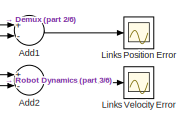
[diagram: root canvas - part 1/6, top center region]
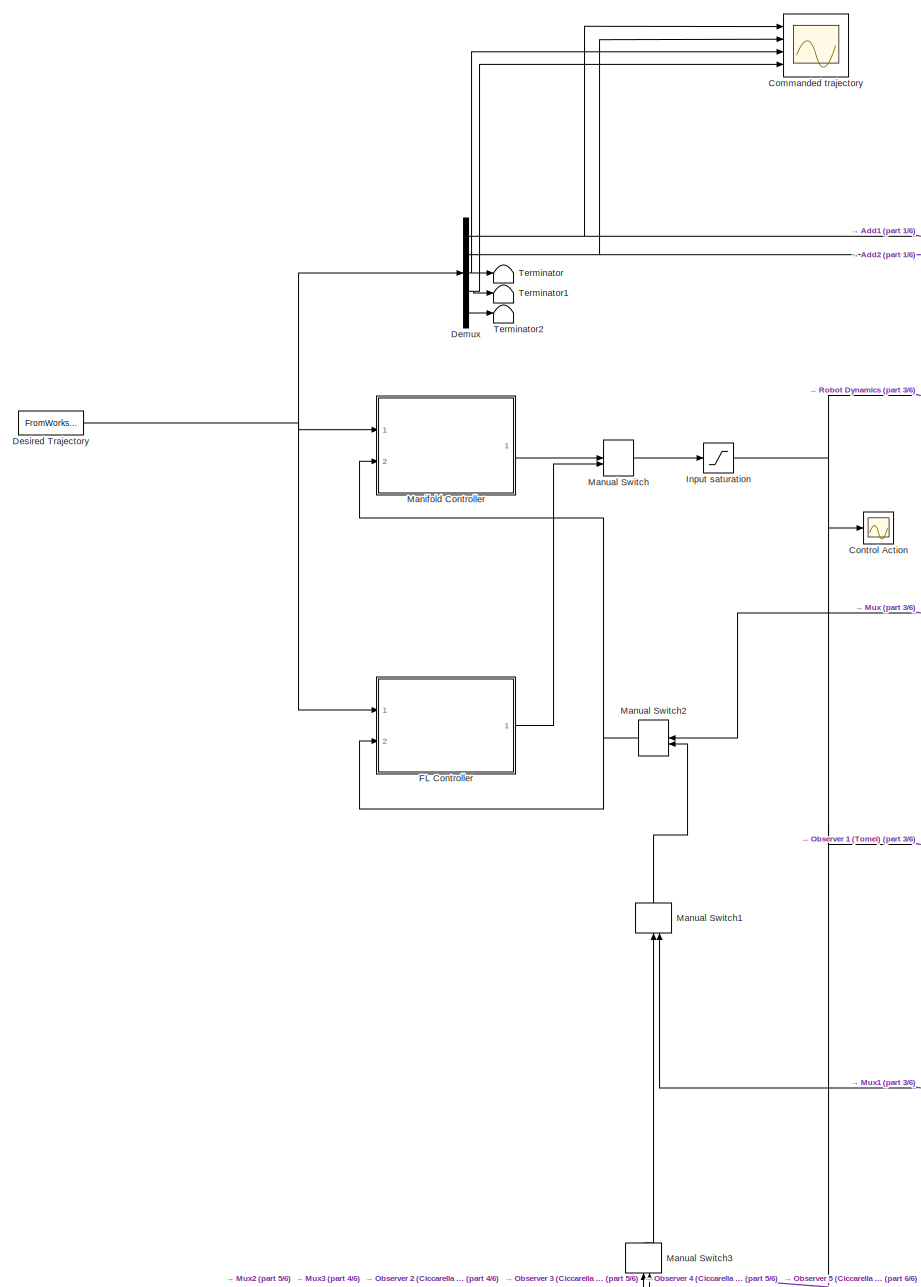
[diagram: root canvas - part 2/6, top left region]
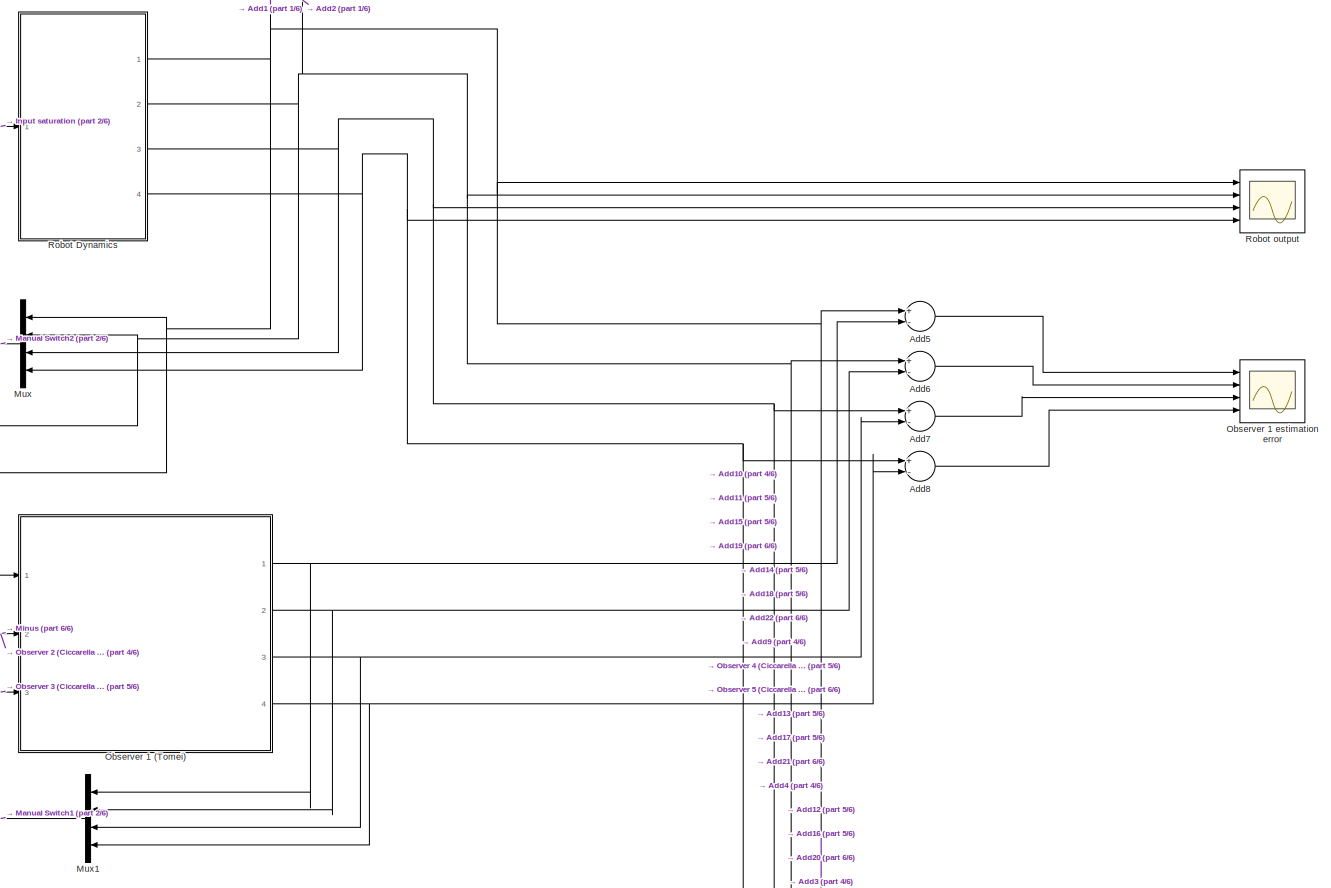
[diagram: root canvas - part 3/6, top right region]
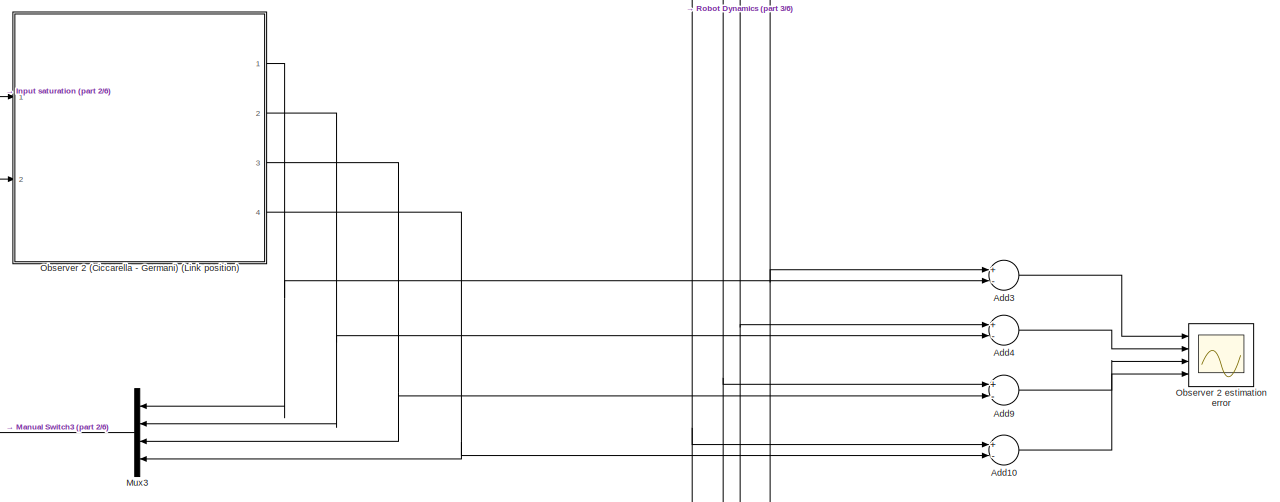
[diagram: root canvas - part 4/6, middle right region]
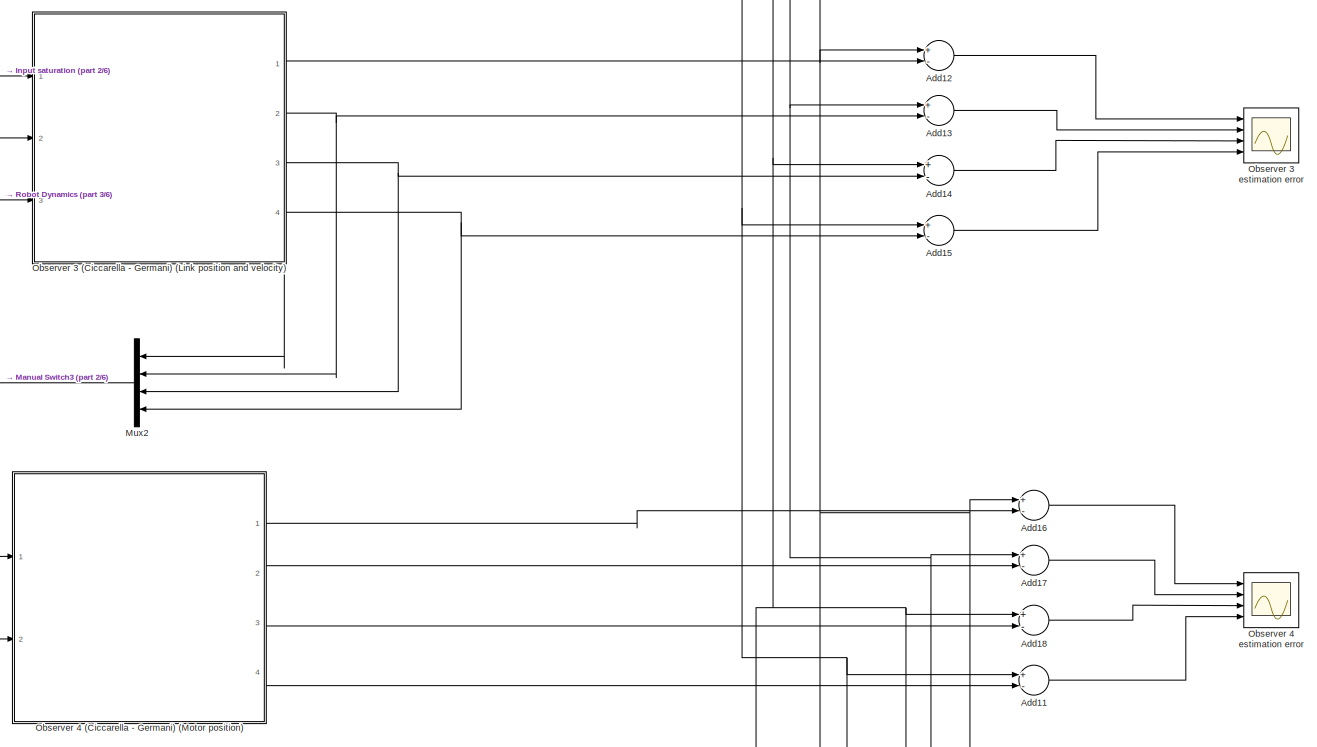
[diagram: root canvas - part 5/6, bottom right region]
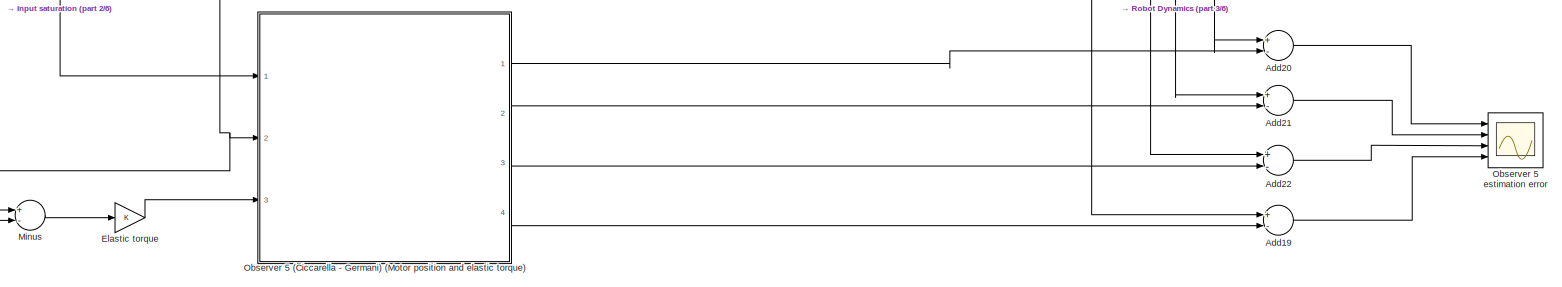
[diagram: root canvas - part 6/6, bottom center region]
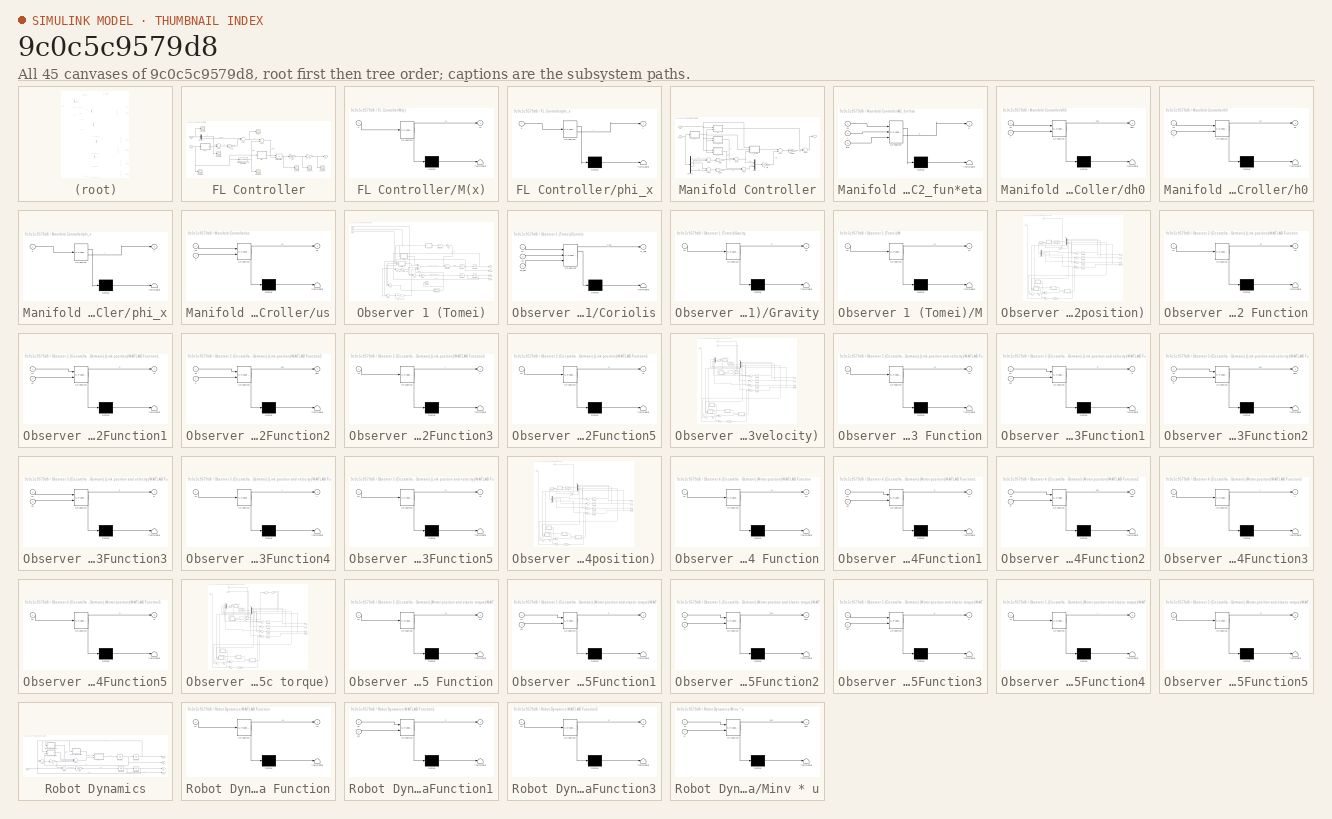
[diagram: thumbnail index - all 45 canvases of the model, root first then tree order]
MODEL slx_9c0c5c9579d8
KIND model
CONFIG AbsTol = auto
CONFIG EnableMultiTasking = off
CONFIG FixedStep = 1e-5
CONFIG MaxStep = auto
CONFIG MinStep = auto
CONFIG RelTol = auto
CONFIG SampleTimeConstraint = Unconstrained
CONFIG Solver = ode15s
CONFIG SolverName = ode15s
CONFIG StartTime = 0.0
CONFIG StopTime = sim_time
BLOCK [Sum] Add1
  InputSameDT = off
  Inputs = +-
  OutDataTypeStr = Inherit: Inherit via internal rule
  Ports = [2, 1]
  SaturateOnIntegerOverflow = off
BLOCK [Sum] Add10
  InputSameDT = off
  Inputs = +-
  OutDataTypeStr = Inherit: Inherit via internal rule
  Ports = [2, 1]
  SaturateOnIntegerOverflow = off
BLOCK [Sum] Add11
  InputSameDT = off
  Inputs = +-
  OutDataTypeStr = Inherit: Inherit via internal rule
  Ports = [2, 1]
  SaturateOnIntegerOverflow = off
BLOCK [Sum] Add12
  InputSameDT = off
  Inputs = +-
  OutDataTypeStr = Inherit: Inherit via internal rule
  Ports = [2, 1]
  SaturateOnIntegerOverflow = off
BLOCK [Sum] Add13
  InputSameDT = off
  Inputs = +-
  OutDataTypeStr = Inherit: Inherit via internal rule
  Ports = [2, 1]
  SaturateOnIntegerOverflow = off
BLOCK [Sum] Add14
  InputSameDT = off
  Inputs = +-
  OutDataTypeStr = Inherit: Inherit via internal rule
  Ports = [2, 1]
  SaturateOnIntegerOverflow = off
BLOCK [Sum] Add15
  InputSameDT = off
  Inputs = +-
  OutDataTypeStr = Inherit: Inherit via internal rule
  Ports = [2, 1]
  SaturateOnIntegerOverflow = off
BLOCK [Sum] Add16
  InputSameDT = off
  Inputs = +-
  OutDataTypeStr = Inherit: Inherit via internal rule
  Ports = [2, 1]
  SaturateOnIntegerOverflow = off
BLOCK [Sum] Add17
  InputSameDT = off
  Inputs = +-
  OutDataTypeStr = Inherit: Inherit via internal rule
  Ports = [2, 1]
  SaturateOnIntegerOverflow = off
BLOCK [Sum] Add18
  InputSameDT = off
  Inputs = +-
  OutDataTypeStr = Inherit: Inherit via internal rule
  Ports = [2, 1]
  SaturateOnIntegerOverflow = off
BLOCK [Sum] Add19
  InputSameDT = off
  Inputs = +-
  OutDataTypeStr = Inherit: Inherit via internal rule
  Ports = [2, 1]
  SaturateOnIntegerOverflow = off
BLOCK [Sum] Add2
  InputSameDT = off
  Inputs = +-
  OutDataTypeStr = Inherit: Inherit via internal rule
  Ports = [2, 1]
  SaturateOnIntegerOverflow = off
BLOCK [Sum] Add20
  InputSameDT = off
  Inputs = +-
  OutDataTypeStr = Inherit: Inherit via internal rule
  Ports = [2, 1]
  SaturateOnIntegerOverflow = off
BLOCK [Sum] Add21
  InputSameDT = off
  Inputs = +-
  OutDataTypeStr = Inherit: Inherit via internal rule
  Ports = [2, 1]
  SaturateOnIntegerOverflow = off
BLOCK [Sum] Add22
  InputSameDT = off
  Inputs = +-
  OutDataTypeStr = Inherit: Inherit via internal rule
  Ports = [2, 1]
  SaturateOnIntegerOverflow = off
BLOCK [Sum] Add3
  InputSameDT = off
  Inputs = +-
  OutDataTypeStr = Inherit: Inherit via internal rule
  Ports = [2, 1]
  SaturateOnIntegerOverflow = off
BLOCK [Sum] Add4
  InputSameDT = off
  Inputs = +-
  OutDataTypeStr = Inherit: Inherit via internal rule
  Ports = [2, 1]
  SaturateOnIntegerOverflow = off
BLOCK [Sum] Add5
  InputSameDT = off
  Inputs = +-
  OutDataTypeStr = Inherit: Inherit via internal rule
  Ports = [2, 1]
  SaturateOnIntegerOverflow = off
BLOCK [Sum] Add6
  InputSameDT = off
  Inputs = +-
  OutDataTypeStr = Inherit: Inherit via internal rule
  Ports = [2, 1]
  SaturateOnIntegerOverflow = off
BLOCK [Sum] Add7
  InputSameDT = off
  Inputs = +-
  OutDataTypeStr = Inherit: Inherit via internal rule
  Ports = [2, 1]
  SaturateOnIntegerOverflow = off
BLOCK [Sum] Add8
  InputSameDT = off
  Inputs = +-
  OutDataTypeStr = Inherit: Inherit via internal rule
  Ports = [2, 1]
  SaturateOnIntegerOverflow = off
BLOCK [Sum] Add9
  InputSameDT = off
  Inputs = +-
  OutDataTypeStr = Inherit: Inherit via internal rule
  Ports = [2, 1]
  SaturateOnIntegerOverflow = off
BLOCK [Scope] Commanded trajectory
  Floating = off
  NumInputPorts = 4
  Ports = [4]
  ScopeSpecificationString = Simulink.scopes.TimeScopeBlockCfg('CurrentConfiguration', extmgr.ConfigurationSet(extmgr.Configuration('Core','General UI',true,'FigureColor',[1 1 1]),extmgr.Configuration('Core','Source UI',true),extmgr.Configuration('Sources','WiredSimulink',true,'DataLoggingVariableName','ScopeData1'),extmgr.Configuration('Visuals','Time Domain',true,'SerializedDisplays',{struct('MinYLimReal','-0.3927','MaxYLim...<+5050ch>
BLOCK [Scope] Control Action
  Floating = off
  NumInputPorts = 1
  Ports = [1]
  ScopeSpecificationString = Simulink.scopes.TimeScopeBlockCfg('CurrentConfiguration', extmgr.ConfigurationSet(extmgr.Configuration('Core','General UI',true),extmgr.Configuration('Core','Source UI',true),extmgr.Configuration('Sources','WiredSimulink',true,'DataLoggingVariableName','ScopeData2'),extmgr.Configuration('Visuals','Time Domain',true,'SerializedDisplays',{struct('MinYLimReal','-0.99838','MaxYLimReal','0.57435','YLab...<+1471ch>
BLOCK [Demux] Demux
  DisplayOption = bar
  Outputs = [n;n;n;n;n]
  Ports = [1, 5]
BLOCK [FromWorkspace] Desired Trajectory
  SampleTime = 0
  VariableName = yd
  ZeroCross = on
BLOCK [Gain] Elastic torque
  Gain = K
  Multiplication = Matrix(K*u) (u vector)
  OutDataTypeStr = Inherit: Inherit via internal rule
  ParamDataTypeStr = Inherit: Inherit via internal rule
  SaturateOnIntegerOverflow = off
BLOCK [SubSystem] FL Controller
  Ports = [2, 1]
  RequestExecContextInheritance = off
BLOCK [Sum] FL Controller/Add
  InputSameDT = off
  Inputs = -+
  OutDataTypeStr = Inherit: Inherit via internal rule
  Ports = [2, 1]
  SaturateOnIntegerOverflow = off
BLOCK [Sum] FL Controller/Add1
  InputSameDT = off
  OutDataTypeStr = Inherit: Inherit via internal rule
  Ports = [2, 1]
  SaturateOnIntegerOverflow = off
BLOCK [Sum] FL Controller/Add2
  InputSameDT = off
  Inputs = +-
  OutDataTypeStr = Inherit: Inherit via internal rule
  Ports = [2, 1]
  SaturateOnIntegerOverflow = off
BLOCK [Demux] FL Controller/Demux
  DisplayOption = bar
  Outputs = [4*n; n]
  Ports = [1, 2]
BLOCK [MATLABFcn] FL Controller/Interpreted MATLAB Function
  MATLABFcn = F_fun(u(:))
  Output1D = off
  Ports = [1, 1]
BLOCK [Gain] FL Controller/J
  Gain = J
  Multiplication = Matrix(K*u) (u vector)
  OutDataTypeStr = Inherit: Inherit via internal rule
  ParamDataTypeStr = Inherit: Inherit via internal rule
  SaturateOnIntegerOverflow = off
BLOCK [Gain] FL Controller/K_ctr
  Gain = K_ctr
  Multiplication = Matrix(K*u) (u vector)
  OutDataTypeStr = Inherit: Inherit via internal rule
  ParamDataTypeStr = Inherit: Inherit via internal rule
  SaturateOnIntegerOverflow = off
BLOCK [Gain] FL Controller/Kinv
  Gain = inv(K)
  Multiplication = Matrix(K*u) (u vector)
  OutDataTypeStr = Inherit: Inherit via internal rule
  ParamDataTypeStr = Inherit: Inherit via internal rule
  SaturateOnIntegerOverflow = off
BLOCK [SubSystem] FL Controller/M(x)
  ErrorFcn = Stateflow.Translate.translate
  PermitHierarchicalResolution = ExplicitOnly
  Ports = [1, 1]
  RequestExecContextInheritance = off
  SFBlockType = MATLAB Function
  TreatAsAtomicUnit = on
BLOCK [Demux] FL Controller/M(x)/ Demux 
  DisplayOption = bar
  Outputs = 1
  Ports = [1, 1]
BLOCK [S-Function] FL Controller/M(x)/ SFunction 
  EnableBusSupport = on
  FunctionName = sf_sfun
  Parameters = J,K,n
  PortCounts = [1 2]
  Ports = [1, 2]
  SFcnIsStateOwnerBlock = off
  SFunctionDeploymentMode = off
  Tag = Stateflow S-Function 14
BLOCK [Terminator] FL Controller/M(x)/ Terminator 
BLOCK [Outport] FL Controller/M(x)/M
  IconDisplay = Port number
BLOCK [Inport] FL Controller/M(x)/x
  IconDisplay = Port number
BLOCK [Product] FL Controller/Matrix Multiply
  InputSameDT = off
  Inputs = **
  Multiplication = Matrix(*)
  OutDataTypeStr = Inherit: Inherit via internal rule
  Ports = [2, 1]
  RndMeth = Floor
  SaturateOnIntegerOverflow = off
BLOCK [Scope] FL Controller/Scope
  Floating = off
  NumInputPorts = 1
  Ports = [1]
  ScopeSpecificationString = Simulink.scopes.TimeScopeBlockCfg('CurrentConfiguration', extmgr.ConfigurationSet(extmgr.Configuration('Core','General UI',true),extmgr.Configuration('Core','Source UI',true),extmgr.Configuration('Sources','WiredSimulink',true,'DataLoggingVariableName','ScopeData1'),extmgr.Configuration('Visuals','Time Domain',true,'SerializedDisplays',{struct('MinYLimReal','-4029283930079.41309','MaxYLimReal','40...<+1521ch>
BLOCK [Scope] FL Controller/Scope1
  Floating = off
  NumInputPorts = 1
  Ports = [1]
  ScopeSpecificationString = Simulink.scopes.TimeScopeBlockCfg('CurrentConfiguration', extmgr.ConfigurationSet(extmgr.Configuration('Core','General UI',true),extmgr.Configuration('Core','Source UI',true),extmgr.Configuration('Sources','WiredSimulink',true,'DataLoggingVariableName','ScopeData2'),extmgr.Configuration('Visuals','Time Domain',true,'SerializedDisplays',{struct('MinYLimReal','-201464196.50397','MaxYLimReal','203834...<+1436ch>
BLOCK [Scope] FL Controller/Scope2
  Floating = off
  NumInputPorts = 1
  Ports = [1]
  ScopeSpecificationString = Simulink.scopes.TimeScopeBlockCfg('CurrentConfiguration', extmgr.ConfigurationSet(extmgr.Configuration('Core','General UI',true),extmgr.Configuration('Core','Source UI',true),extmgr.Configuration('Sources','WiredSimulink',true,'DataLoggingVariableName','ScopeData3'),extmgr.Configuration('Visuals','Time Domain',true,'SerializedDisplays',{struct('MinYLimReal','-20146419650.39706','MaxYLimReal','2038...<+1442ch>
BLOCK [Scope] FL Controller/Scope3
  Floating = off
  NumInputPorts = 1
  Ports = [1]
  ScopeSpecificationString = Simulink.scopes.TimeScopeBlockCfg('CurrentConfiguration', extmgr.ConfigurationSet(extmgr.Configuration('Core','General UI',true),extmgr.Configuration('Core','Source UI',true),extmgr.Configuration('Sources','WiredSimulink',true,'DataLoggingVariableName','ScopeData4'),extmgr.Configuration('Visuals','Time Domain',true,'SerializedDisplays',{struct('MinYLimReal','-7485409477493.48438','MaxYLimReal','54...<+1501ch>
BLOCK [Scope] FL Controller/Scope4
  Floating = off
  NumInputPorts = 1
  Ports = [1]
  ScopeSpecificationString = Simulink.scopes.TimeScopeBlockCfg('CurrentConfiguration', extmgr.ConfigurationSet(extmgr.Configuration('Core','General UI',true),extmgr.Configuration('Core','Source UI',true),extmgr.Configuration('Sources','WiredSimulink',true,'DataLoggingVariableName','ScopeData6'),extmgr.Configuration('Visuals','Time Domain',true,'SerializedDisplays',{struct('MinYLimReal','-1208672398.48295','MaxYLimReal','23333...<+1507ch>
BLOCK [Scope] FL Controller/Scope5
  Floating = off
  NumInputPorts = 1
  Ports = [1]
  ScopeSpecificationString = Simulink.scopes.TimeScopeBlockCfg('CurrentConfiguration', extmgr.ConfigurationSet(extmgr.Configuration('Core','General UI',true),extmgr.Configuration('Core','Source UI',true),extmgr.Configuration('Sources','WiredSimulink',true,'DataLoggingVariableName','ScopeData7'),extmgr.Configuration('Visuals','Time Domain',true,'SerializedDisplays',{struct('MinYLimReal','-1.76715','MaxYLimReal','0.19635','YLab...<+1459ch>
BLOCK [Scope] FL Controller/Scope6
  Floating = off
  NumInputPorts = 1
  Ports = [1]
  ScopeSpecificationString = Simulink.scopes.TimeScopeBlockCfg('CurrentConfiguration', extmgr.ConfigurationSet(extmgr.Configuration('Core','General UI',true),extmgr.Configuration('Core','Source UI',true),extmgr.Configuration('Sources','WiredSimulink',true,'DataLoggingVariableName','ScopeData8'),extmgr.Configuration('Visuals','Time Domain',true,'SerializedDisplays',{struct('MinYLimReal','-43048.91943','MaxYLimReal','49870.5399...<+1467ch>
BLOCK [SubSystem] FL Controller/phi_x
  ErrorFcn = Stateflow.Translate.translate
  PermitHierarchicalResolution = ExplicitOnly
  Ports = [1, 1]
  RequestExecContextInheritance = off
  SFBlockType = MATLAB Function
  TreatAsAtomicUnit = on
BLOCK [Demux] FL Controller/phi_x/ Demux 
  DisplayOption = bar
  Outputs = 1
  Ports = [1, 1]
BLOCK [S-Function] FL Controller/phi_x/ SFunction 
  EnableBusSupport = on
  FunctionName = sf_sfun
  PortCounts = [1 2]
  Ports = [1, 2]
  SFcnIsStateOwnerBlock = off
  SFunctionDeploymentMode = off
  Tag = Stateflow S-Function 13
BLOCK [Terminator] FL Controller/phi_x/ Terminator 
BLOCK [Inport] FL Controller/phi_x/x
  IconDisplay = Port number
BLOCK [Outport] FL Controller/phi_x/y
  IconDisplay = Port number
BLOCK [Outport] FL Controller/u
  IconDisplay = Port number
BLOCK [Scope] FL Controller/v
  Floating = off
  NumInputPorts = 1
  Ports = [1]
  ScopeSpecificationString = Simulink.scopes.TimeScopeBlockCfg('CurrentConfiguration', extmgr.ConfigurationSet(extmgr.Configuration('Core','General UI',true),extmgr.Configuration('Core','Source UI',true),extmgr.Configuration('Sources','WiredSimulink',true,'DataLoggingVariableName','ScopeData5'),extmgr.Configuration('Visuals','Time Domain',true,'SerializedDisplays',{struct('MinYLimReal','-39620048026.37321','MaxYLimReal','1706...<+1477ch>
BLOCK [Inport] FL Controller/x
  IconDisplay = Port number
  Port = 2
BLOCK [Inport] FL Controller/yd
  IconDisplay = Port number
BLOCK [Saturate] Input saturation
  InputPortMap = u0
  LowerLimit = -200
  Ports = [1, 1]
  UpperLimit = 200
BLOCK [Scope] Links Position Error
  Floating = off
  NumInputPorts = 1
  Ports = [1]
  ScopeSpecificationString = Simulink.scopes.TimeScopeBlockCfg('CurrentConfiguration', extmgr.ConfigurationSet(extmgr.Configuration('Core','General UI',true),extmgr.Configuration('Core','Source UI',true),extmgr.Configuration('Sources','WiredSimulink',true,'DataLoggingVariableName','ScopeData1'),extmgr.Configuration('Visuals','Time Domain',true,'SerializedDisplays',{struct('MinYLimReal','-0.00024','MaxYLimReal','0.00061','YLab...<+1456ch>
BLOCK [Scope] Links Velocity Error
  Floating = off
  NumInputPorts = 1
  Ports = [1]
  ScopeSpecificationString = Simulink.scopes.TimeScopeBlockCfg('CurrentConfiguration', extmgr.ConfigurationSet(extmgr.Configuration('Core','General UI',true),extmgr.Configuration('Core','Source UI',true),extmgr.Configuration('Sources','WiredSimulink',true,'DataLoggingVariableName','ScopeData2'),extmgr.Configuration('Visuals','Time Domain',true,'SerializedDisplays',{struct('MinYLimReal','-0.075','MaxYLimReal','0.14074','YLabel...<+1449ch>
BLOCK [SubSystem] Manifold Controller
  Ports = [2, 1]
  RequestExecContextInheritance = off
BLOCK [SubSystem] Manifold Controller/A2_fun*eta
  ErrorFcn = Stateflow.Translate.translate
  PermitHierarchicalResolution = ExplicitOnly
  Ports = [3, 1]
  RequestExecContextInheritance = off
  SFBlockType = MATLAB Function
  TreatAsAtomicUnit = on
BLOCK [Demux] Manifold Controller/A2_fun*eta/ Demux 
  DisplayOption = bar
  Outputs = 1
  Ports = [1, 1]
BLOCK [S-Function] Manifold Controller/A2_fun*eta/ SFunction 
  EnableBusSupport = on
  FunctionName = sf_sfun
  PortCounts = [3 2]
  Ports = [3, 2]
  SFcnIsStateOwnerBlock = off
  SFunctionDeploymentMode = off
  Tag = Stateflow S-Function 20
BLOCK [Terminator] Manifold Controller/A2_fun*eta/ Terminator 
BLOCK [Inport] Manifold Controller/A2_fun*eta/eta
  IconDisplay = Port number
  Port = 3
BLOCK [Outport] Manifold Controller/A2_fun*eta/o
  IconDisplay = Port number
BLOCK [Inport] Manifold Controller/A2_fun*eta/y
  IconDisplay = Port number
  Port = 2
BLOCK [Inport] Manifold Controller/A2_fun*eta/yd
  IconDisplay = Port number
BLOCK [Sum] Manifold Controller/Add
  InputSameDT = off
  Inputs = +-
  OutDataTypeStr = Inherit: Inherit via internal rule
  Ports = [2, 1]
  SaturateOnIntegerOverflow = off
BLOCK [Sum] Manifold Controller/Add1
  InputSameDT = off
  Inputs = +-
  OutDataTypeStr = Inherit: Inherit via internal rule
  Ports = [2, 1]
  SaturateOnIntegerOverflow = off
BLOCK [Sum] Manifold Controller/Add2
  InputSameDT = off
  Inputs = -+
  OutDataTypeStr = Inherit: Inherit via internal rule
  Ports = [2, 1]
  SaturateOnIntegerOverflow = off
BLOCK [Sum] Manifold Controller/Add3
  InputSameDT = off
  Inputs = -+
  OutDataTypeStr = Inherit: Inherit via internal rule
  Ports = [2, 1]
  SaturateOnIntegerOverflow = off
BLOCK [Sum] Manifold Controller/Add4
  InputSameDT = off
  Inputs = -+
  OutDataTypeStr = Inherit: Inherit via internal rule
  Ports = [2, 1]
  SaturateOnIntegerOverflow = off
BLOCK [Sum] Manifold Controller/Add5
  InputSameDT = off
  OutDataTypeStr = Inherit: Inherit via internal rule
  Ports = [2, 1]
  SaturateOnIntegerOverflow = off
BLOCK [Demux] Manifold Controller/Demux1
  DisplayOption = bar
  Outputs = [n;n;n;n]
  Ports = [1, 4]
BLOCK [Gain] Manifold Controller/Gain
  Gain = K
  Multiplication = Matrix(K*u) (u vector)
  OutDataTypeStr = Inherit: Inherit via internal rule
  ParamDataTypeStr = Inherit: Inherit via internal rule
  SaturateOnIntegerOverflow = off
BLOCK [Gain] Manifold Controller/Gain1
  Gain = K
  Multiplication = Matrix(K*u) (u vector)
  OutDataTypeStr = Inherit: Inherit via internal rule
  ParamDataTypeStr = Inherit: Inherit via internal rule
  SaturateOnIntegerOverflow = off
BLOCK [Gain] Manifold Controller/K_ctr2
  Gain = K_ctr2
  Multiplication = Matrix(K*u) (u vector)
  OutDataTypeStr = Inherit: Inherit via internal rule
  ParamDataTypeStr = Inherit: Inherit via internal rule
  SaturateOnIntegerOverflow = off
BLOCK [Mux] Manifold Controller/Mux
  DisplayOption = bar
  Inputs = [n;n]
  Ports = [2, 1]
BLOCK [SubSystem] Manifold Controller/dh0
  ErrorFcn = Stateflow.Translate.translate
  PermitHierarchicalResolution = ExplicitOnly
  Ports = [2, 1]
  RequestExecContextInheritance = off
  SFBlockType = MATLAB Function
  TreatAsAtomicUnit = on
BLOCK [Demux] Manifold Controller/dh0/ Demux 
  DisplayOption = bar
  Outputs = 1
  Ports = [1, 1]
BLOCK [S-Function] Manifold Controller/dh0/ SFunction 
  EnableBusSupport = on
  FunctionName = sf_sfun
  PortCounts = [2 2]
  Ports = [2, 2]
  SFcnIsStateOwnerBlock = off
  SFunctionDeploymentMode = off
  Tag = Stateflow S-Function 19
BLOCK [Terminator] Manifold Controller/dh0/ Terminator 
BLOCK [Outport] Manifold Controller/dh0/dh0
  IconDisplay = Port number
BLOCK [Inport] Manifold Controller/dh0/y
  IconDisplay = Port number
  Port = 2
BLOCK [Inport] Manifold Controller/dh0/yd
  IconDisplay = Port number
BLOCK [SubSystem] Manifold Controller/h0
  ErrorFcn = Stateflow.Translate.translate
  PermitHierarchicalResolution = ExplicitOnly
  Ports = [2, 1]
  RequestExecContextInheritance = off
  SFBlockType = MATLAB Function
  TreatAsAtomicUnit = on
BLOCK [Demux] Manifold Controller/h0/ Demux 
  DisplayOption = bar
  Outputs = 1
  Ports = [1, 1]
BLOCK [S-Function] Manifold Controller/h0/ SFunction 
  EnableBusSupport = on
  FunctionName = sf_sfun
  PortCounts = [2 2]
  Ports = [2, 2]
  SFcnIsStateOwnerBlock = off
  SFunctionDeploymentMode = off
  Tag = Stateflow S-Function 17
BLOCK [Terminator] Manifold Controller/h0/ Terminator 
BLOCK [Outport] Manifold Controller/h0/h0
  IconDisplay = Port number
BLOCK [Inport] Manifold Controller/h0/y
  IconDisplay = Port number
  Port = 2
BLOCK [Inport] Manifold Controller/h0/yd
  IconDisplay = Port number
BLOCK [Gain] Manifold Controller/inv(B2)
  Gain = inv(B2)
  Multiplication = Matrix(K*u) (u vector)
  OutDataTypeStr = Inherit: Inherit via internal rule
  ParamDataTypeStr = Inherit: Inherit via internal rule
  SaturateOnIntegerOverflow = off
BLOCK [SubSystem] Manifold Controller/phi_x
  ErrorFcn = Stateflow.Translate.translate
  PermitHierarchicalResolution = ExplicitOnly
  Ports = [1, 1]
  RequestExecContextInheritance = off
  SFBlockType = MATLAB Function
  TreatAsAtomicUnit = on
BLOCK [Demux] Manifold Controller/phi_x/ Demux 
  DisplayOption = bar
  Outputs = 1
  Ports = [1, 1]
BLOCK [S-Function] Manifold Controller/phi_x/ SFunction 
  EnableBusSupport = on
  FunctionName = sf_sfun
  PortCounts = [1 2]
  Ports = [1, 2]
  SFcnIsStateOwnerBlock = off
  SFunctionDeploymentMode = off
  Tag = Stateflow S-Function 18
BLOCK [Terminator] Manifold Controller/phi_x/ Terminator 
BLOCK [Inport] Manifold Controller/phi_x/x
  IconDisplay = Port number
BLOCK [Outport] Manifold Controller/phi_x/y
  IconDisplay = Port number
BLOCK [Outport] Manifold Controller/u
  IconDisplay = Port number
BLOCK [SubSystem] Manifold Controller/us
  ErrorFcn = Stateflow.Translate.translate
  PermitHierarchicalResolution = ExplicitOnly
  Ports = [2, 1]
  RequestExecContextInheritance = off
  SFBlockType = MATLAB Function
  TreatAsAtomicUnit = on
BLOCK [Demux] Manifold Controller/us/ Demux 
  DisplayOption = bar
  Outputs = 1
  Ports = [1, 1]
BLOCK [S-Function] Manifold Controller/us/ SFunction 
  EnableBusSupport = on
  FunctionName = sf_sfun
  PortCounts = [2 2]
  Ports = [2, 2]
  SFcnIsStateOwnerBlock = off
  SFunctionDeploymentMode = off
  Tag = Stateflow S-Function 8
BLOCK [Terminator] Manifold Controller/us/ Terminator 
BLOCK [Outport] Manifold Controller/us/us
  IconDisplay = Port number
BLOCK [Inport] Manifold Controller/us/y
  IconDisplay = Port number
  Port = 2
BLOCK [Inport] Manifold Controller/us/yd
  IconDisplay = Port number
BLOCK [Inport] Manifold Controller/x
  IconDisplay = Port number
  Port = 2
BLOCK [Inport] Manifold Controller/yd
  IconDisplay = Port number
BLOCK [ManualSwitch] Manual Switch
BLOCK [ManualSwitch] Manual Switch1
BLOCK [ManualSwitch] Manual Switch2
BLOCK [ManualSwitch] Manual Switch3
  CurrentSetting = 0
BLOCK [Sum] Minus
  InputSameDT = off
  Inputs = +-
  OutDataTypeStr = Inherit: Inherit via internal rule
  Ports = [2, 1]
  SaturateOnIntegerOverflow = off
BLOCK [Mux] Mux
  DisplayOption = bar
  Ports = [4, 1]
BLOCK [Mux] Mux1
  DisplayOption = bar
  Ports = [4, 1]
BLOCK [Mux] Mux2
  DisplayOption = bar
  Ports = [4, 1]
BLOCK [Mux] Mux3
  DisplayOption = bar
  Ports = [4, 1]
BLOCK [SubSystem] Observer 1 (Tomei)
  Ports = [3, 4]
  RequestExecContextInheritance = off
BLOCK [Sum] Observer 1 (Tomei)/Add
  InputSameDT = off
  Inputs = +-
  OutDataTypeStr = Inherit: Inherit via internal rule
  Ports = [2, 1]
  SaturateOnIntegerOverflow = off
BLOCK [Sum] Observer 1 (Tomei)/Add1
  InputSameDT = off
  Inputs = +++++
  OutDataTypeStr = Inherit: Inherit via internal rule
  Ports = [5, 1]
  SaturateOnIntegerOverflow = off
BLOCK [Sum] Observer 1 (Tomei)/Add2
  InputSameDT = off
  OutDataTypeStr = Inherit: Inherit via internal rule
  Ports = [2, 1]
  SaturateOnIntegerOverflow = off
BLOCK [Sum] Observer 1 (Tomei)/Add3
  InputSameDT = off
  Inputs = +-
  OutDataTypeStr = Inherit: Inherit via internal rule
  Ports = [2, 1]
  SaturateOnIntegerOverflow = off
BLOCK [Sum] Observer 1 (Tomei)/Add4
  InputSameDT = off
  Inputs = +-
  OutDataTypeStr = Inherit: Inherit via internal rule
  Ports = [2, 1]
  SaturateOnIntegerOverflow = off
BLOCK [SubSystem] Observer 1 (Tomei)/Coriolis
  ErrorFcn = Stateflow.Translate.translate
  PermitHierarchicalResolution = ExplicitOnly
  Ports = [3, 1]
  RequestExecContextInheritance = off
  SFBlockType = MATLAB Function
  TreatAsAtomicUnit = on
BLOCK [Demux] Observer 1 (Tomei)/Coriolis/ Demux 
  DisplayOption = bar
  Outputs = 1
  Ports = [1, 1]
BLOCK [S-Function] Observer 1 (Tomei)/Coriolis/ SFunction 
  EnableBusSupport = on
  FunctionName = sf_sfun
  PortCounts = [3 2]
  Ports = [3, 2]
  SFcnIsStateOwnerBlock = off
  SFunctionDeploymentMode = off
  Tag = Stateflow S-Function 4
BLOCK [Terminator] Observer 1 (Tomei)/Coriolis/ Terminator 
BLOCK [Outport] Observer 1 (Tomei)/Coriolis/S_hat
  IconDisplay = Port number
BLOCK [Inport] Observer 1 (Tomei)/Coriolis/x1
  IconDisplay = Port number
BLOCK [Inport] Observer 1 (Tomei)/Coriolis/x2
  IconDisplay = Port number
  Port = 2
BLOCK [Inport] Observer 1 (Tomei)/Coriolis/x2_hat
  IconDisplay = Port number
  Port = 3
BLOCK [Gain] Observer 1 (Tomei)/Gain
  Gain = -1
  OutDataTypeStr = Inherit: Inherit via internal rule
  ParamDataTypeStr = Inherit: Inherit via internal rule
  SaturateOnIntegerOverflow = off
BLOCK [Gain] Observer 1 (Tomei)/Gain1
  Gain = Jinv
  Multiplication = Matrix(K*u) (u vector)
  OutDataTypeStr = Inherit: Inherit via internal rule
  ParamDataTypeStr = Inherit: Inherit via internal rule
  SaturateOnIntegerOverflow = off
BLOCK [SubSystem] Observer 1 (Tomei)/Gravity
  ErrorFcn = Stateflow.Translate.translate
  PermitHierarchicalResolution = ExplicitOnly
  Ports = [1, 1]
  RequestExecContextInheritance = off
  SFBlockType = MATLAB Function
  TreatAsAtomicUnit = on
BLOCK [Demux] Observer 1 (Tomei)/Gravity/ Demux 
  DisplayOption = bar
  Outputs = 1
  Ports = [1, 1]
BLOCK [S-Function] Observer 1 (Tomei)/Gravity/ SFunction 
  EnableBusSupport = on
  FunctionName = sf_sfun
  PortCounts = [1 2]
  Ports = [1, 2]
  SFcnIsStateOwnerBlock = off
  SFunctionDeploymentMode = off
  Tag = Stateflow S-Function 22
BLOCK [Terminator] Observer 1 (Tomei)/Gravity/ Terminator 
BLOCK [Outport] Observer 1 (Tomei)/Gravity/G
  IconDisplay = Port number
BLOCK [Inport] Observer 1 (Tomei)/Gravity/x1
  IconDisplay = Port number
BLOCK [Integrator] Observer 1 (Tomei)/Integrator
  InitialCondition = x0_hat(n+1:2*n)
  Ports = [1, 1]
BLOCK [Integrator] Observer 1 (Tomei)/Integrator1
  InitialCondition = x0_hat(1:n)
  Ports = [1, 1]
BLOCK [Integrator] Observer 1 (Tomei)/Integrator2
  InitialCondition = x0_hat(3*n + 1:4*n)
  Ports = [1, 1]
BLOCK [Integrator] Observer 1 (Tomei)/Integrator3
  InitialCondition = x0_hat(2*n+1:3*n)
  Ports = [1, 1]
BLOCK [Gain] Observer 1 (Tomei)/K*(x1_hat - x3_hat)
  Gain = K
  Multiplication = Matrix(K*u) (u vector)
  OutDataTypeStr = Inherit: Inherit via internal rule
  ParamDataTypeStr = Inherit: Inherit via internal rule
  SaturateOnIntegerOverflow = off
BLOCK [Gain] Observer 1 (Tomei)/Ka*(x1-x1_hat)
  Gain = Ka_t
  Multiplication = Matrix(K*u) (u vector)
  OutDataTypeStr = Inherit: Inherit via internal rule
  ParamDataTypeStr = Inherit: Inherit via internal rule
  SaturateOnIntegerOverflow = off
BLOCK [SubSystem] Observer 1 (Tomei)/M
  ErrorFcn = Stateflow.Translate.translate
  PermitHierarchicalResolution = ExplicitOnly
  Ports = [1, 1]
  RequestExecContextInheritance = off
  SFBlockType = MATLAB Function
  TreatAsAtomicUnit = on
BLOCK [Demux] Observer 1 (Tomei)/M/ Demux 
  DisplayOption = bar
  Outputs = 1
  Ports = [1, 1]
BLOCK [S-Function] Observer 1 (Tomei)/M/ SFunction 
  EnableBusSupport = on
  FunctionName = sf_sfun
  PortCounts = [1 2]
  Ports = [1, 2]
  SFcnIsStateOwnerBlock = off
  SFunctionDeploymentMode = off
  Tag = Stateflow S-Function 3
BLOCK [Terminator] Observer 1 (Tomei)/M/ Terminator 
BLOCK [Outport] Observer 1 (Tomei)/M/M
  IconDisplay = Port number
BLOCK [Inport] Observer 1 (Tomei)/M/x1
  IconDisplay = Port number
BLOCK [Product] Observer 1 (Tomei)/Matrix Multiply
  InputSameDT = off
  Multiplication = Matrix(*)
  OutDataTypeStr = Inherit: Inherit via internal rule
  Ports = [2, 1]
  RndMeth = Floor
  SaturateOnIntegerOverflow = off
BLOCK [Product] Observer 1 (Tomei)/Matrix Multiply1
  InputSameDT = off
  Inputs = /
  Multiplication = Matrix(*)
  OutDataTypeStr = Inherit: Inherit via internal rule
  Ports = [1, 1]
  RndMeth = Floor
  SaturateOnIntegerOverflow = off
BLOCK [Scope] Observer 1 (Tomei)/Scope9
  Floating = off
  NumInputPorts = 1
  Ports = [1]
  ScopeSpecificationString = Simulink.scopes.TimeScopeBlockCfg('CurrentConfiguration', extmgr.ConfigurationSet(extmgr.Configuration('Core','General UI',true),extmgr.Configuration('Core','Source UI',true),extmgr.Configuration('Sources','WiredSimulink',true,'DataLoggingVariableName','ScopeData9'),extmgr.Configuration('Visuals','Time Domain',true,'SerializedDisplays',{struct('MinYLimReal','-0.00285','MaxYLimReal','0.00824','YLab...<+1512ch>
BLOCK [StateSpace] Observer 1 (Tomei)/State-Space
  A = -A_t
  B = B_t
  C = -K1_t
  D = -K2_t
  InitialCondition = 0
  Ports = [1, 1]
BLOCK [Inport] Observer 1 (Tomei)/u
  IconDisplay = Port number
BLOCK [Inport] Observer 1 (Tomei)/x1
  IconDisplay = Port number
  Port = 2
BLOCK [Outport] Observer 1 (Tomei)/x1_hat
  IconDisplay = Port number
BLOCK [Inport] Observer 1 (Tomei)/x2
  IconDisplay = Port number
  Port = 3
BLOCK [Outport] Observer 1 (Tomei)/x2_hat
  IconDisplay = Port number
  Port = 2
BLOCK [Outport] Observer 1 (Tomei)/x3_hat
  IconDisplay = Port number
  Port = 3
BLOCK [Outport] Observer 1 (Tomei)/x4_hat
  IconDisplay = Port number
  Port = 4
BLOCK [Scope] Observer 1 estimation error
  Floating = off
  NumInputPorts = 4
  Ports = [4]
  ScopeSpecificationString = Simulink.scopes.TimeScopeBlockCfg('CurrentConfiguration', extmgr.ConfigurationSet(extmgr.Configuration('Core','General UI',true,'FigureColor',[1 1 1]),extmgr.Configuration('Core','Source UI',true),extmgr.Configuration('Sources','WiredSimulink',true,'DataLoggingVariableName','ScopeData2'),extmgr.Configuration('Visuals','Time Domain',true,'SerializedDisplays',{struct('MinYLimReal','-0.20286','MaxYLi...<+5206ch>
BLOCK [SubSystem] Observer 2 (Ciccarella - Germani) (Link position)
  Ports = [2, 4]
  RequestExecContextInheritance = off
BLOCK [Sum] Observer 2 (Ciccarella - Germani) (Link position)/Add
  InputSameDT = off
  Inputs = +-
  OutDataTypeStr = Inherit: Inherit via internal rule
  Ports = [2, 1]
  SaturateOnIntegerOverflow = off
BLOCK [Sum] Observer 2 (Ciccarella - Germani) (Link position)/Add1
  InputSameDT = off
  Inputs = +++
  OutDataTypeStr = Inherit: Inherit via internal rule
  Ports = [3, 1]
  SaturateOnIntegerOverflow = off
BLOCK [Sum] Observer 2 (Ciccarella - Germani) (Link position)/Add10
  InputSameDT = off
  OutDataTypeStr = Inherit: Inherit via internal rule
  Ports = [2, 1]
  SaturateOnIntegerOverflow = off
BLOCK [Sum] Observer 2 (Ciccarella - Germani) (Link position)/Add11
  InputSameDT = off
  Inputs = +-
  OutDataTypeStr = Inherit: Inherit via internal rule
  Ports = [2, 1]
  SaturateOnIntegerOverflow = off
BLOCK [Sum] Observer 2 (Ciccarella - Germani) (Link position)/Add2
  InputSameDT = off
  OutDataTypeStr = Inherit: Inherit via internal rule
  Ports = [2, 1]
  SaturateOnIntegerOverflow = off
BLOCK [Sum] Observer 2 (Ciccarella - Germani) (Link position)/Add3
  InputSameDT = off
  OutDataTypeStr = Inherit: Inherit via internal rule
  Ports = [2, 1]
  SaturateOnIntegerOverflow = off
BLOCK [Sum] Observer 2 (Ciccarella - Germani) (Link position)/Add4
  InputSameDT = off
  OutDataTypeStr = Inherit: Inherit via internal rule
  Ports = [2, 1]
  SaturateOnIntegerOverflow = off
BLOCK [Sum] Observer 2 (Ciccarella - Germani) (Link position)/Add9
  InputSameDT = off
  OutDataTypeStr = Inherit: Inherit via internal rule
  Ports = [2, 1]
  SaturateOnIntegerOverflow = off
BLOCK [Demux] Observer 2 (Ciccarella - Germani) (Link position)/Demux
  DisplayOption = bar
  Ports = [1, 4]
BLOCK [Gain] Observer 2 (Ciccarella - Germani) (Link position)/Gain
  Gain = K
  Multiplication = Matrix(K*u) (u vector)
  OutDataTypeStr = Inherit: Inherit via internal rule
  ParamDataTypeStr = Inherit: Inherit via internal rule
  SaturateOnIntegerOverflow = off
BLOCK [Gain] Observer 2 (Ciccarella - Germani) (Link position)/Gain1
  Gain = Jinv
  Multiplication = Matrix(K*u) (u vector)
  OutDataTypeStr = Inherit: Inherit via internal rule
  ParamDataTypeStr = Inherit: Inherit via internal rule
  SaturateOnIntegerOverflow = off
BLOCK [Integrator] Observer 2 (Ciccarella - Germani) (Link position)/Integrator4
  InitialCondition = x0_hat(1:n)
  Ports = [1, 1]
BLOCK [Integrator] Observer 2 (Ciccarella - Germani) (Link position)/Integrator5
  InitialCondition = x0_hat(n+1:2*n)
  LowerSaturationLimit = -5
  Ports = [1, 1]
  UpperSaturationLimit = 5
BLOCK [Integrator] Observer 2 (Ciccarella - Germani) (Link position)/Integrator6
  InitialCondition = x0_hat(2*n+1:3*n)
  Ports = [1, 1]
BLOCK [Integrator] Observer 2 (Ciccarella - Germani) (Link position)/Integrator7
  InitialCondition = x0_hat(3*n + 1:4*n)
  LowerSaturationLimit = -5
  Ports = [1, 1]
  UpperSaturationLimit = 5
BLOCK [MATLABFcn] Observer 2 (Ciccarella - Germani) (Link position)/Interpreted MATLAB Function
  MATLABFcn = Q_fun(u(:))
  Output1D = off
  OutputDimensions = [4*n,4*n]
  Ports = [1, 1]
BLOCK [SubSystem] Observer 2 (Ciccarella - Germani) (Link position)/MATLAB Function
  ErrorFcn = Stateflow.Translate.translate
  PermitHierarchicalResolution = ExplicitOnly
  Ports = [1, 1]
  RequestExecContextInheritance = off
  SFBlockType = MATLAB Function
  TreatAsAtomicUnit = on
BLOCK [Demux] Observer 2 (Ciccarella - Germani) (Link position)/MATLAB Function/ Demux 
  DisplayOption = bar
  Outputs = 1
  Ports = [1, 1]
BLOCK [S-Function] Observer 2 (Ciccarella - Germani) (Link position)/MATLAB Function/ SFunction 
  EnableBusSupport = on
  FunctionName = sf_sfun
  PortCounts = [1 2]
  Ports = [1, 2]
  SFcnIsStateOwnerBlock = off
  SFunctionDeploymentMode = off
  Tag = Stateflow S-Function 15
BLOCK [Terminator] Observer 2 (Ciccarella - Germani) (Link position)/MATLAB Function/ Terminator 
BLOCK [Outport] Observer 2 (Ciccarella - Germani) (Link position)/MATLAB Function/M
  IconDisplay = Port number
BLOCK [Inport] Observer 2 (Ciccarella - Germani) (Link position)/MATLAB Function/x1
  IconDisplay = Port number
BLOCK [SubSystem] Observer 2 (Ciccarella - Germani) (Link position)/MATLAB Function1
  ErrorFcn = Stateflow.Translate.translate
  PermitHierarchicalResolution = ExplicitOnly
  Ports = [2, 1]
  RequestExecContextInheritance = off
  SFBlockType = MATLAB Function
  TreatAsAtomicUnit = on
BLOCK [Demux] Observer 2 (Ciccarella - Germani) (Link position)/MATLAB Function1/ Demux 
  DisplayOption = bar
  Outputs = 1
  Ports = [1, 1]
BLOCK [S-Function] Observer 2 (Ciccarella - Germani) (Link position)/MATLAB Function1/ SFunction 
  EnableBusSupport = on
  FunctionName = sf_sfun
  PortCounts = [2 2]
  Ports = [2, 2]
  SFcnIsStateOwnerBlock = off
  SFunctionDeploymentMode = off
  Tag = Stateflow S-Function 16
BLOCK [Terminator] Observer 2 (Ciccarella - Germani) (Link position)/MATLAB Function1/ Terminator 
BLOCK [Outport] Observer 2 (Ciccarella - Germani) (Link position)/MATLAB Function1/S
  IconDisplay = Port number
BLOCK [Inport] Observer 2 (Ciccarella - Germani) (Link position)/MATLAB Function1/x1
  IconDisplay = Port number
BLOCK [Inport] Observer 2 (Ciccarella - Germani) (Link position)/MATLAB Function1/x2
  IconDisplay = Port number
  Port = 2
BLOCK [SubSystem] Observer 2 (Ciccarella - Germani) (Link position)/MATLAB Function2
  ErrorFcn = Stateflow.Translate.translate
  PermitHierarchicalResolution = ExplicitOnly
  Ports = [2, 1]
  RequestExecContextInheritance = off
  SFBlockType = MATLAB Function
  TreatAsAtomicUnit = on
BLOCK [Demux] Observer 2 (Ciccarella - Germani) (Link position)/MATLAB Function2/ Demux 
  DisplayOption = bar
  Outputs = 1
  Ports = [1, 1]
BLOCK [S-Function] Observer 2 (Ciccarella - Germani) (Link position)/MATLAB Function2/ SFunction 
  EnableBusSupport = on
  FunctionName = sf_sfun
  PortCounts = [2 2]
  Ports = [2, 2]
  SFcnIsStateOwnerBlock = off
  SFunctionDeploymentMode = off
  Tag = Stateflow S-Function 23
BLOCK [Terminator] Observer 2 (Ciccarella - Germani) (Link position)/MATLAB Function2/ Terminator 
BLOCK [Inport] Observer 2 (Ciccarella - Germani) (Link position)/MATLAB Function2/M
  IconDisplay = Port number
BLOCK [Outport] Observer 2 (Ciccarella - Germani) (Link position)/MATLAB Function2/dx2
  IconDisplay = Port number
BLOCK [Inport] Observer 2 (Ciccarella - Germani) (Link position)/MATLAB Function2/n
  IconDisplay = Port number
  Port = 2
BLOCK [SubSystem] Observer 2 (Ciccarella - Germani) (Link position)/MATLAB Function3
  ErrorFcn = Stateflow.Translate.translate
  PermitHierarchicalResolution = ExplicitOnly
  Ports = [1, 1]
  RequestExecContextInheritance = off
  SFBlockType = MATLAB Function
  TreatAsAtomicUnit = on
BLOCK [Demux] Observer 2 (Ciccarella - Germani) (Link position)/MATLAB Function3/ Demux 
  Outputs = 1
  Ports = [1, 1]
BLOCK [S-Function] Observer 2 (Ciccarella - Germani) (Link position)/MATLAB Function3/ SFunction 
  EnableBusSupport = on
  FunctionName = sf_sfun
  Parameters = K_obs_1
  PortCounts = [1 2]
  Ports = [1, 2]
  SFcnIsStateOwnerBlock = off
  SFunctionDeploymentMode = off
  Tag = Stateflow S-Function 24
BLOCK [Terminator] Observer 2 (Ciccarella - Germani) (Link position)/MATLAB Function3/ Terminator 
BLOCK [Inport] Observer 2 (Ciccarella - Germani) (Link position)/MATLAB Function3/Q
  IconDisplay = Port number
BLOCK [Outport] Observer 2 (Ciccarella - Germani) (Link position)/MATLAB Function3/y
  IconDisplay = Port number
BLOCK [SubSystem] Observer 2 (Ciccarella - Germani) (Link position)/MATLAB Function5
  ErrorFcn = Stateflow.Translate.translate
  PermitHierarchicalResolution = ExplicitOnly
  Ports = [1, 1]
  RequestExecContextInheritance = off
  SFBlockType = MATLAB Function
  TreatAsAtomicUnit = on
BLOCK [Demux] Observer 2 (Ciccarella - Germani) (Link position)/MATLAB Function5/ Demux 
  DisplayOption = bar
  Outputs = 1
  Ports = [1, 1]
BLOCK [S-Function] Observer 2 (Ciccarella - Germani) (Link position)/MATLAB Function5/ SFunction 
  EnableBusSupport = on
  FunctionName = sf_sfun
  PortCounts = [1 2]
  Ports = [1, 2]
  SFcnIsStateOwnerBlock = off
  SFunctionDeploymentMode = off
  Tag = Stateflow S-Function 25
BLOCK [Terminator] Observer 2 (Ciccarella - Germani) (Link position)/MATLAB Function5/ Terminator 
BLOCK [Outport] Observer 2 (Ciccarella - Germani) (Link position)/MATLAB Function5/G
  IconDisplay = Port number
BLOCK [Inport] Observer 2 (Ciccarella - Germani) (Link position)/MATLAB Function5/x1
  IconDisplay = Port number
BLOCK [Product] Observer 2 (Ciccarella - Germani) (Link position)/Matrix Multiply
  InputSameDT = off
  Multiplication = Matrix(*)
  OutDataTypeStr = Inherit: Inherit via internal rule
  Ports = [2, 1]
  RndMeth = Floor
  SaturateOnIntegerOverflow = off
BLOCK [Mux] Observer 2 (Ciccarella - Germani) (Link position)/Mux1
  DisplayOption = bar
  Ports = [4, 1]
BLOCK [Inport] Observer 2 (Ciccarella - Germani) (Link position)/u
  IconDisplay = Port number
BLOCK [Inport] Observer 2 (Ciccarella - Germani) (Link position)/x1
  IconDisplay = Port number
  Port = 2
BLOCK [Outport] Observer 2 (Ciccarella - Germani) (Link position)/x1_hat
  IconDisplay = Port number
BLOCK [Outport] Observer 2 (Ciccarella - Germani) (Link position)/x2_hat
  IconDisplay = Port number
  Port = 2
BLOCK [Outport] Observer 2 (Ciccarella - Germani) (Link position)/x3_hat
  IconDisplay = Port number
  Port = 3
BLOCK [Outport] Observer 2 (Ciccarella - Germani) (Link position)/x4_hat
  IconDisplay = Port number
  Port = 4
BLOCK [Scope] Observer 2 estimation error
  Floating = off
  NumInputPorts = 4
  Ports = [4]
  ScopeSpecificationString = Simulink.scopes.TimeScopeBlockCfg('CurrentConfiguration', extmgr.ConfigurationSet(extmgr.Configuration('Core','General UI',true,'FigureColor',[1 1 1]),extmgr.Configuration('Core','Source UI',true),extmgr.Configuration('Sources','WiredSimulink',true,'DataLoggingVariableName','ScopeData3'),extmgr.Configuration('Visuals','Time Domain',true,'SerializedDisplays',{struct('MinYLimReal','-0.62971','MaxYLi...<+5213ch>
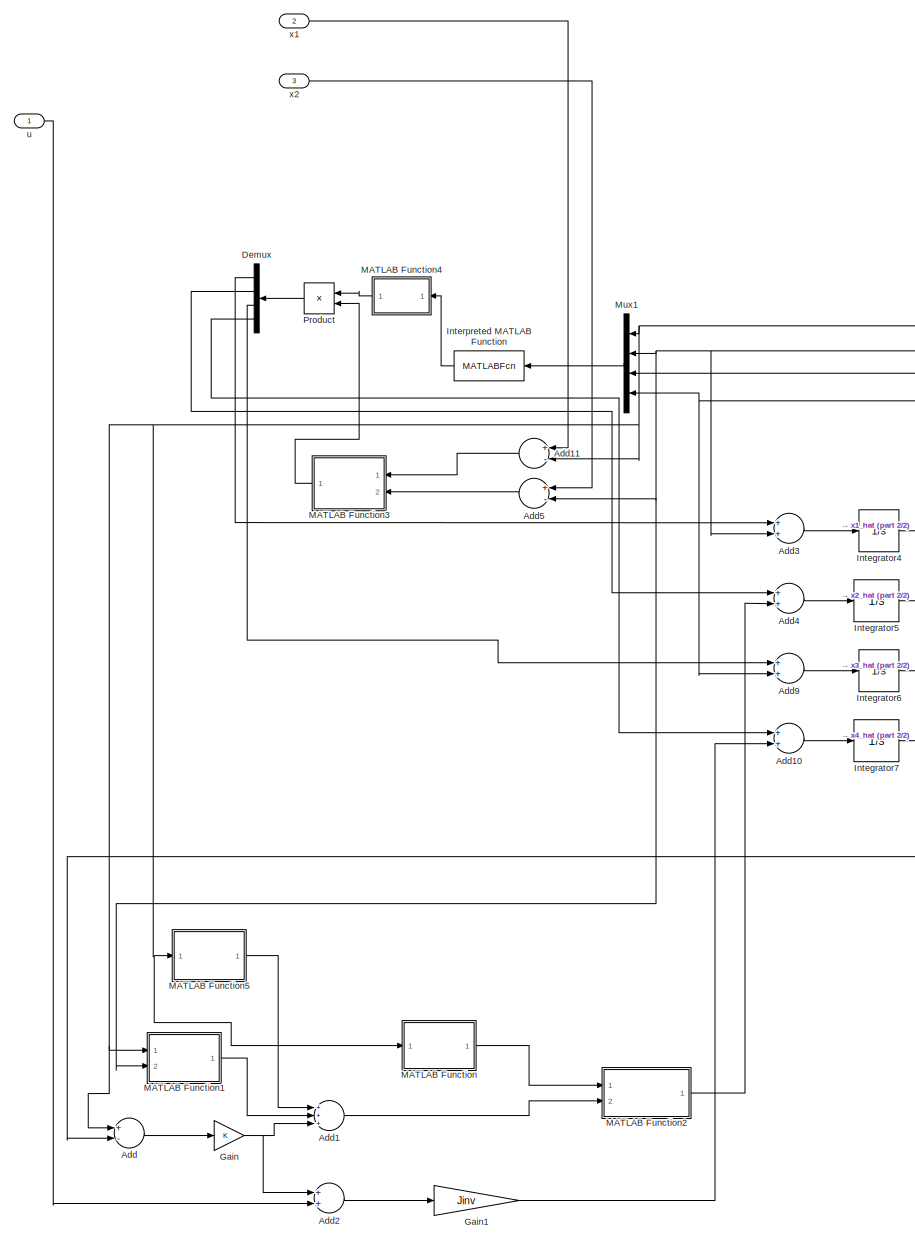
[diagram: Observer 3 (Ciccarella - Germani) (Link position and velocity) - part 1/2, left side, full height]
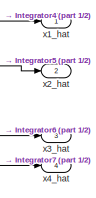
[diagram: Observer 3 (Ciccarella - Germani) (Link position and velocity) - part 2/2, middle right region]
BLOCK [SubSystem] Observer 3 (Ciccarella - Germani) (Link position and velocity)
  Ports = [3, 4]
  RequestExecContextInheritance = off
BLOCK [Sum] Observer 3 (Ciccarella - Germani) (Link position and velocity)/Add
  InputSameDT = off
  Inputs = +-
  OutDataTypeStr = Inherit: Inherit via internal rule
  Ports = [2, 1]
  SaturateOnIntegerOverflow = off
BLOCK [Sum] Observer 3 (Ciccarella - Germani) (Link position and velocity)/Add1
  InputSameDT = off
  Inputs = +++
  OutDataTypeStr = Inherit: Inherit via internal rule
  Ports = [3, 1]
  SaturateOnIntegerOverflow = off
BLOCK [Sum] Observer 3 (Ciccarella - Germani) (Link position and velocity)/Add10
  InputSameDT = off
  OutDataTypeStr = Inherit: Inherit via internal rule
  Ports = [2, 1]
  SaturateOnIntegerOverflow = off
BLOCK [Sum] Observer 3 (Ciccarella - Germani) (Link position and velocity)/Add11
  InputSameDT = off
  Inputs = +-
  OutDataTypeStr = Inherit: Inherit via internal rule
  Ports = [2, 1]
  SaturateOnIntegerOverflow = off
BLOCK [Sum] Observer 3 (Ciccarella - Germani) (Link position and velocity)/Add2
  InputSameDT = off
  OutDataTypeStr = Inherit: Inherit via internal rule
  Ports = [2, 1]
  SaturateOnIntegerOverflow = off
BLOCK [Sum] Observer 3 (Ciccarella - Germani) (Link position and velocity)/Add3
  InputSameDT = off
  OutDataTypeStr = Inherit: Inherit via internal rule
  Ports = [2, 1]
  SaturateOnIntegerOverflow = off
BLOCK [Sum] Observer 3 (Ciccarella - Germani) (Link position and velocity)/Add4
  InputSameDT = off
  OutDataTypeStr = Inherit: Inherit via internal rule
  Ports = [2, 1]
  SaturateOnIntegerOverflow = off
BLOCK [Sum] Observer 3 (Ciccarella - Germani) (Link position and velocity)/Add5
  InputSameDT = off
  Inputs = +-
  OutDataTypeStr = Inherit: Inherit via internal rule
  Ports = [2, 1]
  SaturateOnIntegerOverflow = off
BLOCK [Sum] Observer 3 (Ciccarella - Germani) (Link position and velocity)/Add9
  InputSameDT = off
  OutDataTypeStr = Inherit: Inherit via internal rule
  Ports = [2, 1]
  SaturateOnIntegerOverflow = off
BLOCK [Demux] Observer 3 (Ciccarella - Germani) (Link position and velocity)/Demux
  DisplayOption = bar
  Ports = [1, 4]
BLOCK [Gain] Observer 3 (Ciccarella - Germani) (Link position and velocity)/Gain
  Gain = K
  Multiplication = Matrix(K*u) (u vector)
  OutDataTypeStr = Inherit: Inherit via internal rule
  ParamDataTypeStr = Inherit: Inherit via internal rule
  SaturateOnIntegerOverflow = off
BLOCK [Gain] Observer 3 (Ciccarella - Germani) (Link position and velocity)/Gain1
  Gain = Jinv
  Multiplication = Matrix(K*u) (u vector)
  OutDataTypeStr = Inherit: Inherit via internal rule
  ParamDataTypeStr = Inherit: Inherit via internal rule
  SaturateOnIntegerOverflow = off
BLOCK [Integrator] Observer 3 (Ciccarella - Germani) (Link position and velocity)/Integrator4
  InitialCondition = x0_hat(1:n)
  Ports = [1, 1]
BLOCK [Integrator] Observer 3 (Ciccarella - Germani) (Link position and velocity)/Integrator5
  InitialCondition = x0_hat(n+1:2*n)
  LowerSaturationLimit = -5
  Ports = [1, 1]
  UpperSaturationLimit = 5
BLOCK [Integrator] Observer 3 (Ciccarella - Germani) (Link position and velocity)/Integrator6
  InitialCondition = x0_hat(2*n+1:3*n)
  Ports = [1, 1]
BLOCK [Integrator] Observer 3 (Ciccarella - Germani) (Link position and velocity)/Integrator7
  InitialCondition = x0_hat(3*n + 1:4*n)
  LowerSaturationLimit = -5
  Ports = [1, 1]
  UpperSaturationLimit = 5
BLOCK [MATLABFcn] Observer 3 (Ciccarella - Germani) (Link position and velocity)/Interpreted MATLAB Function
  MATLABFcn = Q_fun(u(:))
  Output1D = off
  OutputDimensions = [4*n,4*n]
  Ports = [1, 1]
BLOCK [SubSystem] Observer 3 (Ciccarella - Germani) (Link position and velocity)/MATLAB Function
  ErrorFcn = Stateflow.Translate.translate
  PermitHierarchicalResolution = ExplicitOnly
  Ports = [1, 1]
  RequestExecContextInheritance = off
  SFBlockType = MATLAB Function
  TreatAsAtomicUnit = on
BLOCK [Demux] Observer 3 (Ciccarella - Germani) (Link position and velocity)/MATLAB Function/ Demux 
  DisplayOption = bar
  Outputs = 1
  Ports = [1, 1]
BLOCK [S-Function] Observer 3 (Ciccarella - Germani) (Link position and velocity)/MATLAB Function/ SFunction 
  EnableBusSupport = on
  FunctionName = sf_sfun
  PortCounts = [1 2]
  Ports = [1, 2]
  SFcnIsStateOwnerBlock = off
  SFunctionDeploymentMode = off
  Tag = Stateflow S-Function 6
BLOCK [Terminator] Observer 3 (Ciccarella - Germani) (Link position and velocity)/MATLAB Function/ Terminator 
BLOCK [Outport] Observer 3 (Ciccarella - Germani) (Link position and velocity)/MATLAB Function/M
  IconDisplay = Port number
BLOCK [Inport] Observer 3 (Ciccarella - Germani) (Link position and velocity)/MATLAB Function/x1
  IconDisplay = Port number
BLOCK [SubSystem] Observer 3 (Ciccarella - Germani) (Link position and velocity)/MATLAB Function1
  ErrorFcn = Stateflow.Translate.translate
  PermitHierarchicalResolution = ExplicitOnly
  Ports = [2, 1]
  RequestExecContextInheritance = off
  SFBlockType = MATLAB Function
  TreatAsAtomicUnit = on
BLOCK [Demux] Observer 3 (Ciccarella - Germani) (Link position and velocity)/MATLAB Function1/ Demux 
  DisplayOption = bar
  Outputs = 1
  Ports = [1, 1]
BLOCK [S-Function] Observer 3 (Ciccarella - Germani) (Link position and velocity)/MATLAB Function1/ SFunction 
  EnableBusSupport = on
  FunctionName = sf_sfun
  PortCounts = [2 2]
  Ports = [2, 2]
  SFcnIsStateOwnerBlock = off
  SFunctionDeploymentMode = off
  Tag = Stateflow S-Function 9
BLOCK [Terminator] Observer 3 (Ciccarella - Germani) (Link position and velocity)/MATLAB Function1/ Terminator 
BLOCK [Outport] Observer 3 (Ciccarella - Germani) (Link position and velocity)/MATLAB Function1/S
  IconDisplay = Port number
BLOCK [Inport] Observer 3 (Ciccarella - Germani) (Link position and velocity)/MATLAB Function1/x1
  IconDisplay = Port number
BLOCK [Inport] Observer 3 (Ciccarella - Germani) (Link position and velocity)/MATLAB Function1/x2
  IconDisplay = Port number
  Port = 2
BLOCK [SubSystem] Observer 3 (Ciccarella - Germani) (Link position and velocity)/MATLAB Function2
  ErrorFcn = Stateflow.Translate.translate
  PermitHierarchicalResolution = ExplicitOnly
  Ports = [2, 1]
  RequestExecContextInheritance = off
  SFBlockType = MATLAB Function
  TreatAsAtomicUnit = on
BLOCK [Demux] Observer 3 (Ciccarella - Germani) (Link position and velocity)/MATLAB Function2/ Demux 
  DisplayOption = bar
  Outputs = 1
  Ports = [1, 1]
BLOCK [S-Function] Observer 3 (Ciccarella - Germani) (Link position and velocity)/MATLAB Function2/ SFunction 
  EnableBusSupport = on
  FunctionName = sf_sfun
  PortCounts = [2 2]
  Ports = [2, 2]
  SFcnIsStateOwnerBlock = off
  SFunctionDeploymentMode = off
  Tag = Stateflow S-Function 10
BLOCK [Terminator] Observer 3 (Ciccarella - Germani) (Link position and velocity)/MATLAB Function2/ Terminator 
BLOCK [Inport] Observer 3 (Ciccarella - Germani) (Link position and velocity)/MATLAB Function2/M
  IconDisplay = Port number
BLOCK [Outport] Observer 3 (Ciccarella - Germani) (Link position and velocity)/MATLAB Function2/dx2
  IconDisplay = Port number
BLOCK [Inport] Observer 3 (Ciccarella - Germani) (Link position and velocity)/MATLAB Function2/n
  IconDisplay = Port number
  Port = 2
BLOCK [SubSystem] Observer 3 (Ciccarella - Germani) (Link position and velocity)/MATLAB Function3
  ErrorFcn = Stateflow.Translate.translate
  PermitHierarchicalResolution = ExplicitOnly
  Ports = [2, 1]
  RequestExecContextInheritance = off
  SFBlockType = MATLAB Function
  TreatAsAtomicUnit = on
BLOCK [Demux] Observer 3 (Ciccarella - Germani) (Link position and velocity)/MATLAB Function3/ Demux 
  DisplayOption = bar
  Outputs = 1
  Ports = [1, 1]
BLOCK [S-Function] Observer 3 (Ciccarella - Germani) (Link position and velocity)/MATLAB Function3/ SFunction 
  EnableBusSupport = on
  FunctionName = sf_sfun
  PortCounts = [2 2]
  Ports = [2, 2]
  SFcnIsStateOwnerBlock = off
  SFunctionDeploymentMode = off
  Tag = Stateflow S-Function 11
BLOCK [Terminator] Observer 3 (Ciccarella - Germani) (Link position and velocity)/MATLAB Function3/ Terminator 
BLOCK [Outport] Observer 3 (Ciccarella - Germani) (Link position and velocity)/MATLAB Function3/e
  IconDisplay = Port number
BLOCK [Inport] Observer 3 (Ciccarella - Germani) (Link position and velocity)/MATLAB Function3/x1
  IconDisplay = Port number
BLOCK [Inport] Observer 3 (Ciccarella - Germani) (Link position and velocity)/MATLAB Function3/x2
  IconDisplay = Port number
  Port = 2
BLOCK [SubSystem] Observer 3 (Ciccarella - Germani) (Link position and velocity)/MATLAB Function4
  ErrorFcn = Stateflow.Translate.translate
  PermitHierarchicalResolution = ExplicitOnly
  Ports = [1, 1]
  RequestExecContextInheritance = off
  SFBlockType = MATLAB Function
  TreatAsAtomicUnit = on
BLOCK [Demux] Observer 3 (Ciccarella - Germani) (Link position and velocity)/MATLAB Function4/ Demux 
  Outputs = 1
  Ports = [1, 1]
BLOCK [S-Function] Observer 3 (Ciccarella - Germani) (Link position and velocity)/MATLAB Function4/ SFunction 
  EnableBusSupport = on
  FunctionName = sf_sfun
  Parameters = K_obs_2
  PortCounts = [1 2]
  Ports = [1, 2]
  SFcnIsStateOwnerBlock = off
  SFunctionDeploymentMode = off
  Tag = Stateflow S-Function 12
BLOCK [Terminator] Observer 3 (Ciccarella - Germani) (Link position and velocity)/MATLAB Function4/ Terminator 
BLOCK [Inport] Observer 3 (Ciccarella - Germani) (Link position and velocity)/MATLAB Function4/Q
  IconDisplay = Port number
BLOCK [Outport] Observer 3 (Ciccarella - Germani) (Link position and velocity)/MATLAB Function4/y
  IconDisplay = Port number
BLOCK [SubSystem] Observer 3 (Ciccarella - Germani) (Link position and velocity)/MATLAB Function5
  ErrorFcn = Stateflow.Translate.translate
  PermitHierarchicalResolution = ExplicitOnly
  Ports = [1, 1]
  RequestExecContextInheritance = off
  SFBlockType = MATLAB Function
  TreatAsAtomicUnit = on
BLOCK [Demux] Observer 3 (Ciccarella - Germani) (Link position and velocity)/MATLAB Function5/ Demux 
  DisplayOption = bar
  Outputs = 1
  Ports = [1, 1]
BLOCK [S-Function] Observer 3 (Ciccarella - Germani) (Link position and velocity)/MATLAB Function5/ SFunction 
  EnableBusSupport = on
  FunctionName = sf_sfun
  PortCounts = [1 2]
  Ports = [1, 2]
  SFcnIsStateOwnerBlock = off
  SFunctionDeploymentMode = off
  Tag = Stateflow S-Function 7
BLOCK [Terminator] Observer 3 (Ciccarella - Germani) (Link position and velocity)/MATLAB Function5/ Terminator 
BLOCK [Outport] Observer 3 (Ciccarella - Germani) (Link position and velocity)/MATLAB Function5/G
  IconDisplay = Port number
BLOCK [Inport] Observer 3 (Ciccarella - Germani) (Link position and velocity)/MATLAB Function5/x1
  IconDisplay = Port number
BLOCK [Mux] Observer 3 (Ciccarella - Germani) (Link position and velocity)/Mux1
  DisplayOption = bar
  Ports = [4, 1]
BLOCK [Product] Observer 3 (Ciccarella - Germani) (Link position and velocity)/Product
  InputSameDT = off
  Multiplication = Matrix(*)
  OutDataTypeStr = Inherit: Inherit via internal rule
  Ports = [2, 1]
  RndMeth = Floor
  SaturateOnIntegerOverflow = off
BLOCK [Inport] Observer 3 (Ciccarella - Germani) (Link position and velocity)/u
  IconDisplay = Port number
BLOCK [Inport] Observer 3 (Ciccarella - Germani) (Link position and velocity)/x1
  IconDisplay = Port number
  Port = 2
BLOCK [Outport] Observer 3 (Ciccarella - Germani) (Link position and velocity)/x1_hat
  IconDisplay = Port number
BLOCK [Inport] Observer 3 (Ciccarella - Germani) (Link position and velocity)/x2
  IconDisplay = Port number
  Port = 3
BLOCK [Outport] Observer 3 (Ciccarella - Germani) (Link position and velocity)/x2_hat
  IconDisplay = Port number
  Port = 2
BLOCK [Outport] Observer 3 (Ciccarella - Germani) (Link position and velocity)/x3_hat
  IconDisplay = Port number
  Port = 3
BLOCK [Outport] Observer 3 (Ciccarella - Germani) (Link position and velocity)/x4_hat
  IconDisplay = Port number
  Port = 4
BLOCK [Scope] Observer 3 estimation error
  Floating = off
  NumInputPorts = 4
  Ports = [4]
  ScopeSpecificationString = Simulink.scopes.TimeScopeBlockCfg('CurrentConfiguration', extmgr.ConfigurationSet(extmgr.Configuration('Core','General UI',true,'FigureColor',[1 1 1]),extmgr.Configuration('Core','Source UI',true),extmgr.Configuration('Sources','WiredSimulink',true,'DataLoggingVariableName','ScopeData4'),extmgr.Configuration('Visuals','Time Domain',true,'SerializedDisplays',{struct('MinYLimReal','-0.22771','MaxYLi...<+5215ch>
BLOCK [SubSystem] Observer 4 (Ciccarella - Germani) (Motor position)
  Ports = [2, 4]
  RequestExecContextInheritance = off
BLOCK [Sum] Observer 4 (Ciccarella - Germani) (Motor position)/Add
  InputSameDT = off
  Inputs = +-
  OutDataTypeStr = Inherit: Inherit via internal rule
  Ports = [2, 1]
  SaturateOnIntegerOverflow = off
BLOCK [Sum] Observer 4 (Ciccarella - Germani) (Motor position)/Add1
  InputSameDT = off
  Inputs = +++
  OutDataTypeStr = Inherit: Inherit via internal rule
  Ports = [3, 1]
  SaturateOnIntegerOverflow = off
BLOCK [Sum] Observer 4 (Ciccarella - Germani) (Motor position)/Add10
  InputSameDT = off
  OutDataTypeStr = Inherit: Inherit via internal rule
  Ports = [2, 1]
  SaturateOnIntegerOverflow = off
BLOCK [Sum] Observer 4 (Ciccarella - Germani) (Motor position)/Add11
  InputSameDT = off
  Inputs = +-
  OutDataTypeStr = Inherit: Inherit via internal rule
  Ports = [2, 1]
  SaturateOnIntegerOverflow = off
BLOCK [Sum] Observer 4 (Ciccarella - Germani) (Motor position)/Add2
  InputSameDT = off
  OutDataTypeStr = Inherit: Inherit via internal rule
  Ports = [2, 1]
  SaturateOnIntegerOverflow = off
BLOCK [Sum] Observer 4 (Ciccarella - Germani) (Motor position)/Add3
  InputSameDT = off
  OutDataTypeStr = Inherit: Inherit via internal rule
  Ports = [2, 1]
  SaturateOnIntegerOverflow = off
BLOCK [Sum] Observer 4 (Ciccarella - Germani) (Motor position)/Add4
  InputSameDT = off
  OutDataTypeStr = Inherit: Inherit via internal rule
  Ports = [2, 1]
  SaturateOnIntegerOverflow = off
BLOCK [Sum] Observer 4 (Ciccarella - Germani) (Motor position)/Add9
  InputSameDT = off
  OutDataTypeStr = Inherit: Inherit via internal rule
  Ports = [2, 1]
  SaturateOnIntegerOverflow = off
BLOCK [Demux] Observer 4 (Ciccarella - Germani) (Motor position)/Demux
  DisplayOption = bar
  Ports = [1, 4]
BLOCK [Gain] Observer 4 (Ciccarella - Germani) (Motor position)/Gain
  Gain = K
  Multiplication = Matrix(K*u) (u vector)
  OutDataTypeStr = Inherit: Inherit via internal rule
  ParamDataTypeStr = Inherit: Inherit via internal rule
  SaturateOnIntegerOverflow = off
BLOCK [Gain] Observer 4 (Ciccarella - Germani) (Motor position)/Gain1
  Gain = Jinv
  Multiplication = Matrix(K*u) (u vector)
  OutDataTypeStr = Inherit: Inherit via internal rule
  ParamDataTypeStr = Inherit: Inherit via internal rule
  SaturateOnIntegerOverflow = off
BLOCK [Integrator] Observer 4 (Ciccarella - Germani) (Motor position)/Integrator4
  InitialCondition = x0_hat(1:n)
  Ports = [1, 1]
BLOCK [Integrator] Observer 4 (Ciccarella - Germani) (Motor position)/Integrator5
  InitialCondition = x0_hat(n+1:2*n)
  LowerSaturationLimit = -5
  Ports = [1, 1]
  UpperSaturationLimit = 5
BLOCK [Integrator] Observer 4 (Ciccarella - Germani) (Motor position)/Integrator6
  InitialCondition = x0_hat(2*n+1:3*n)
  Ports = [1, 1]
BLOCK [Integrator] Observer 4 (Ciccarella - Germani) (Motor position)/Integrator7
  InitialCondition = x0_hat(3*n + 1:4*n)
  LowerSaturationLimit = -5
  Ports = [1, 1]
  UpperSaturationLimit = 5
BLOCK [MATLABFcn] Observer 4 (Ciccarella - Germani) (Motor position)/Interpreted MATLAB Function
  MATLABFcn = Q1_fun(u(:))
  Output1D = off
  OutputDimensions = [4*n,4*n]
  Ports = [1, 1]
BLOCK [SubSystem] Observer 4 (Ciccarella - Germani) (Motor position)/MATLAB Function
  ErrorFcn = Stateflow.Translate.translate
  PermitHierarchicalResolution = ExplicitOnly
  Ports = [1, 1]
  RequestExecContextInheritance = off
  SFBlockType = MATLAB Function
  TreatAsAtomicUnit = on
BLOCK [Demux] Observer 4 (Ciccarella - Germani) (Motor position)/MATLAB Function/ Demux 
  DisplayOption = bar
  Outputs = 1
  Ports = [1, 1]
BLOCK [S-Function] Observer 4 (Ciccarella - Germani) (Motor position)/MATLAB Function/ SFunction 
  EnableBusSupport = on
  FunctionName = sf_sfun
  PortCounts = [1 2]
  Ports = [1, 2]
  SFcnIsStateOwnerBlock = off
  SFunctionDeploymentMode = off
  Tag = Stateflow S-Function 26
BLOCK [Terminator] Observer 4 (Ciccarella - Germani) (Motor position)/MATLAB Function/ Terminator 
BLOCK [Outport] Observer 4 (Ciccarella - Germani) (Motor position)/MATLAB Function/M
  IconDisplay = Port number
BLOCK [Inport] Observer 4 (Ciccarella - Germani) (Motor position)/MATLAB Function/x1
  IconDisplay = Port number
BLOCK [SubSystem] Observer 4 (Ciccarella - Germani) (Motor position)/MATLAB Function1
  ErrorFcn = Stateflow.Translate.translate
  PermitHierarchicalResolution = ExplicitOnly
  Ports = [2, 1]
  RequestExecContextInheritance = off
  SFBlockType = MATLAB Function
  TreatAsAtomicUnit = on
BLOCK [Demux] Observer 4 (Ciccarella - Germani) (Motor position)/MATLAB Function1/ Demux 
  DisplayOption = bar
  Outputs = 1
  Ports = [1, 1]
BLOCK [S-Function] Observer 4 (Ciccarella - Germani) (Motor position)/MATLAB Function1/ SFunction 
  EnableBusSupport = on
  FunctionName = sf_sfun
  PortCounts = [2 2]
  Ports = [2, 2]
  SFcnIsStateOwnerBlock = off
  SFunctionDeploymentMode = off
  Tag = Stateflow S-Function 27
BLOCK [Terminator] Observer 4 (Ciccarella - Germani) (Motor position)/MATLAB Function1/ Terminator 
BLOCK [Outport] Observer 4 (Ciccarella - Germani) (Motor position)/MATLAB Function1/S
  IconDisplay = Port number
BLOCK [Inport] Observer 4 (Ciccarella - Germani) (Motor position)/MATLAB Function1/x1
  IconDisplay = Port number
BLOCK [Inport] Observer 4 (Ciccarella - Germani) (Motor position)/MATLAB Function1/x2
  IconDisplay = Port number
  Port = 2
BLOCK [SubSystem] Observer 4 (Ciccarella - Germani) (Motor position)/MATLAB Function2
  ErrorFcn = Stateflow.Translate.translate
  PermitHierarchicalResolution = ExplicitOnly
  Ports = [2, 1]
  RequestExecContextInheritance = off
  SFBlockType = MATLAB Function
  TreatAsAtomicUnit = on
BLOCK [Demux] Observer 4 (Ciccarella - Germani) (Motor position)/MATLAB Function2/ Demux 
  DisplayOption = bar
  Outputs = 1
  Ports = [1, 1]
BLOCK [S-Function] Observer 4 (Ciccarella - Germani) (Motor position)/MATLAB Function2/ SFunction 
  EnableBusSupport = on
  FunctionName = sf_sfun
  PortCounts = [2 2]
  Ports = [2, 2]
  SFcnIsStateOwnerBlock = off
  SFunctionDeploymentMode = off
  Tag = Stateflow S-Function 28
BLOCK [Terminator] Observer 4 (Ciccarella - Germani) (Motor position)/MATLAB Function2/ Terminator 
BLOCK [Inport] Observer 4 (Ciccarella - Germani) (Motor position)/MATLAB Function2/M
  IconDisplay = Port number
BLOCK [Outport] Observer 4 (Ciccarella - Germani) (Motor position)/MATLAB Function2/dx2
  IconDisplay = Port number
BLOCK [Inport] Observer 4 (Ciccarella - Germani) (Motor position)/MATLAB Function2/n
  IconDisplay = Port number
  Port = 2
BLOCK [SubSystem] Observer 4 (Ciccarella - Germani) (Motor position)/MATLAB Function3
  ErrorFcn = Stateflow.Translate.translate
  PermitHierarchicalResolution = ExplicitOnly
  Ports = [1, 1]
  RequestExecContextInheritance = off
  SFBlockType = MATLAB Function
  TreatAsAtomicUnit = on
BLOCK [Demux] Observer 4 (Ciccarella - Germani) (Motor position)/MATLAB Function3/ Demux 
  Outputs = 1
  Ports = [1, 1]
BLOCK [S-Function] Observer 4 (Ciccarella - Germani) (Motor position)/MATLAB Function3/ SFunction 
  EnableBusSupport = on
  FunctionName = sf_sfun
  Parameters = K_obs_1
  PortCounts = [1 2]
  Ports = [1, 2]
  SFcnIsStateOwnerBlock = off
  SFunctionDeploymentMode = off
  Tag = Stateflow S-Function 29
BLOCK [Terminator] Observer 4 (Ciccarella - Germani) (Motor position)/MATLAB Function3/ Terminator 
BLOCK [Inport] Observer 4 (Ciccarella - Germani) (Motor position)/MATLAB Function3/Q1
  IconDisplay = Port number
BLOCK [Outport] Observer 4 (Ciccarella - Germani) (Motor position)/MATLAB Function3/y
  IconDisplay = Port number
BLOCK [SubSystem] Observer 4 (Ciccarella - Germani) (Motor position)/MATLAB Function5
  ErrorFcn = Stateflow.Translate.translate
  PermitHierarchicalResolution = ExplicitOnly
  Ports = [1, 1]
  RequestExecContextInheritance = off
  SFBlockType = MATLAB Function
  TreatAsAtomicUnit = on
BLOCK [Demux] Observer 4 (Ciccarella - Germani) (Motor position)/MATLAB Function5/ Demux 
  DisplayOption = bar
  Outputs = 1
  Ports = [1, 1]
BLOCK [S-Function] Observer 4 (Ciccarella - Germani) (Motor position)/MATLAB Function5/ SFunction 
  EnableBusSupport = on
  FunctionName = sf_sfun
  PortCounts = [1 2]
  Ports = [1, 2]
  SFcnIsStateOwnerBlock = off
  SFunctionDeploymentMode = off
  Tag = Stateflow S-Function 30
BLOCK [Terminator] Observer 4 (Ciccarella - Germani) (Motor position)/MATLAB Function5/ Terminator 
BLOCK [Outport] Observer 4 (Ciccarella - Germani) (Motor position)/MATLAB Function5/G
  IconDisplay = Port number
BLOCK [Inport] Observer 4 (Ciccarella - Germani) (Motor position)/MATLAB Function5/x1
  IconDisplay = Port number
BLOCK [Product] Observer 4 (Ciccarella - Germani) (Motor position)/Matrix Multiply
  InputSameDT = off
  Multiplication = Matrix(*)
  OutDataTypeStr = Inherit: Inherit via internal rule
  Ports = [2, 1]
  RndMeth = Floor
  SaturateOnIntegerOverflow = off
BLOCK [Mux] Observer 4 (Ciccarella - Germani) (Motor position)/Mux1
  DisplayOption = bar
  Ports = [4, 1]
BLOCK [Inport] Observer 4 (Ciccarella - Germani) (Motor position)/u
  IconDisplay = Port number
BLOCK [Outport] Observer 4 (Ciccarella - Germani) (Motor position)/x1_hat
  IconDisplay = Port number
BLOCK [Outport] Observer 4 (Ciccarella - Germani) (Motor position)/x2_hat
  IconDisplay = Port number
  Port = 2
BLOCK [Inport] Observer 4 (Ciccarella - Germani) (Motor position)/x3
  IconDisplay = Port number
  Port = 2
BLOCK [Outport] Observer 4 (Ciccarella - Germani) (Motor position)/x3_hat
  IconDisplay = Port number
  Port = 3
BLOCK [Outport] Observer 4 (Ciccarella - Germani) (Motor position)/x4_hat
  IconDisplay = Port number
  Port = 4
BLOCK [Scope] Observer 4 estimation error
  Floating = off
  NumInputPorts = 4
  Ports = [4]
  ScopeSpecificationString = Simulink.scopes.TimeScopeBlockCfg('CurrentConfiguration', extmgr.ConfigurationSet(extmgr.Configuration('Core','General UI',true,'FigureColor',[1 1 1]),extmgr.Configuration('Core','Source UI',true),extmgr.Configuration('Sources','WiredSimulink',true,'DataLoggingVariableName','ScopeData5'),extmgr.Configuration('Visuals','Time Domain',true,'SerializedDisplays',{struct('MinYLimReal','-147.56271','MaxY...<+5227ch>
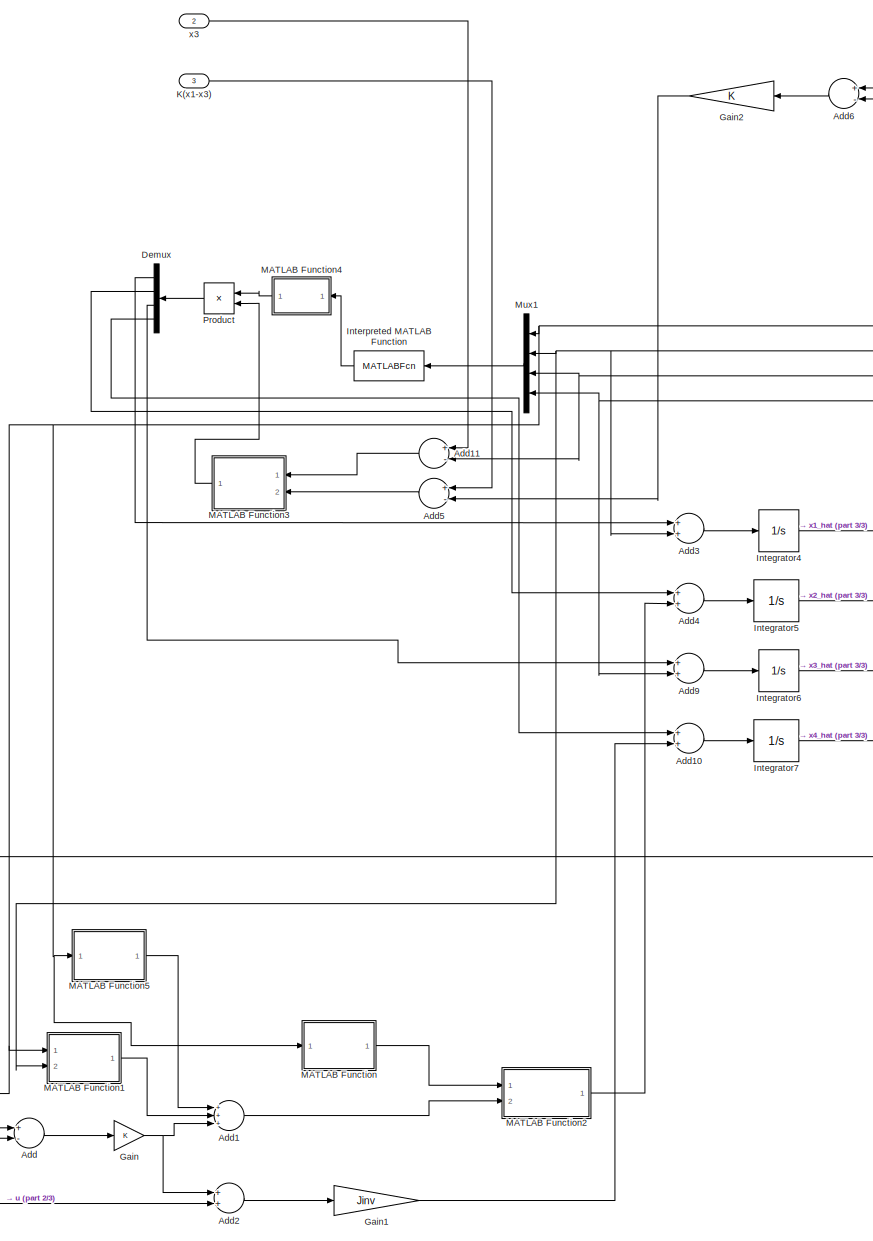
[diagram: Observer 5 (Ciccarella - Germani) (Motor position and elastic torque) - part 1/3, center side, full height]
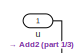
[diagram: Observer 5 (Ciccarella - Germani) (Motor position and elastic torque) - part 2/3, top left region]
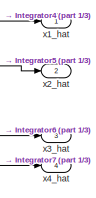
[diagram: Observer 5 (Ciccarella - Germani) (Motor position and elastic torque) - part 3/3, middle right region]
BLOCK [SubSystem] Observer 5 (Ciccarella - Germani) (Motor position and elastic torque)
  Ports = [3, 4]
  RequestExecContextInheritance = off
BLOCK [Sum] Observer 5 (Ciccarella - Germani) (Motor position and elastic torque)/Add
  InputSameDT = off
  Inputs = +-
  OutDataTypeStr = Inherit: Inherit via internal rule
  Ports = [2, 1]
  SaturateOnIntegerOverflow = off
BLOCK [Sum] Observer 5 (Ciccarella - Germani) (Motor position and elastic torque)/Add1
  InputSameDT = off
  Inputs = +++
  OutDataTypeStr = Inherit: Inherit via internal rule
  Ports = [3, 1]
  SaturateOnIntegerOverflow = off
BLOCK [Sum] Observer 5 (Ciccarella - Germani) (Motor position and elastic torque)/Add10
  InputSameDT = off
  OutDataTypeStr = Inherit: Inherit via internal rule
  Ports = [2, 1]
  SaturateOnIntegerOverflow = off
BLOCK [Sum] Observer 5 (Ciccarella - Germani) (Motor position and elastic torque)/Add11
  InputSameDT = off
  Inputs = +-
  OutDataTypeStr = Inherit: Inherit via internal rule
  Ports = [2, 1]
  SaturateOnIntegerOverflow = off
BLOCK [Sum] Observer 5 (Ciccarella - Germani) (Motor position and elastic torque)/Add2
  InputSameDT = off
  OutDataTypeStr = Inherit: Inherit via internal rule
  Ports = [2, 1]
  SaturateOnIntegerOverflow = off
BLOCK [Sum] Observer 5 (Ciccarella - Germani) (Motor position and elastic torque)/Add3
  InputSameDT = off
  OutDataTypeStr = Inherit: Inherit via internal rule
  Ports = [2, 1]
  SaturateOnIntegerOverflow = off
BLOCK [Sum] Observer 5 (Ciccarella - Germani) (Motor position and elastic torque)/Add4
  InputSameDT = off
  OutDataTypeStr = Inherit: Inherit via internal rule
  Ports = [2, 1]
  SaturateOnIntegerOverflow = off
BLOCK [Sum] Observer 5 (Ciccarella - Germani) (Motor position and elastic torque)/Add5
  InputSameDT = off
  Inputs = +-
  OutDataTypeStr = Inherit: Inherit via internal rule
  Ports = [2, 1]
  SaturateOnIntegerOverflow = off
BLOCK [Sum] Observer 5 (Ciccarella - Germani) (Motor position and elastic torque)/Add6
  InputSameDT = off
  Inputs = +-
  OutDataTypeStr = Inherit: Inherit via internal rule
  Ports = [2, 1]
  SaturateOnIntegerOverflow = off
BLOCK [Sum] Observer 5 (Ciccarella - Germani) (Motor position and elastic torque)/Add9
  InputSameDT = off
  OutDataTypeStr = Inherit: Inherit via internal rule
  Ports = [2, 1]
  SaturateOnIntegerOverflow = off
BLOCK [Demux] Observer 5 (Ciccarella - Germani) (Motor position and elastic torque)/Demux
  DisplayOption = bar
  Ports = [1, 4]
BLOCK [Gain] Observer 5 (Ciccarella - Germani) (Motor position and elastic torque)/Gain
  Gain = K
  Multiplication = Matrix(K*u) (u vector)
  OutDataTypeStr = Inherit: Inherit via internal rule
  ParamDataTypeStr = Inherit: Inherit via internal rule
  SaturateOnIntegerOverflow = off
BLOCK [Gain] Observer 5 (Ciccarella - Germani) (Motor position and elastic torque)/Gain1
  Gain = Jinv
  Multiplication = Matrix(K*u) (u vector)
  OutDataTypeStr = Inherit: Inherit via internal rule
  ParamDataTypeStr = Inherit: Inherit via internal rule
  SaturateOnIntegerOverflow = off
BLOCK [Gain] Observer 5 (Ciccarella - Germani) (Motor position and elastic torque)/Gain2
  Gain = K
  Multiplication = Matrix(K*u) (u vector)
  OutDataTypeStr = Inherit: Inherit via internal rule
  ParamDataTypeStr = Inherit: Inherit via internal rule
  SaturateOnIntegerOverflow = off
BLOCK [Integrator] Observer 5 (Ciccarella - Germani) (Motor position and elastic torque)/Integrator4
  InitialCondition = x0_hat(1:n)
  Ports = [1, 1]
BLOCK [Integrator] Observer 5 (Ciccarella - Germani) (Motor position and elastic torque)/Integrator5
  InitialCondition = x0_hat(n+1:2*n)
  LowerSaturationLimit = -5
  Ports = [1, 1]
  UpperSaturationLimit = 5
BLOCK [Integrator] Observer 5 (Ciccarella - Germani) (Motor position and elastic torque)/Integrator6
  InitialCondition = x0_hat(2*n+1:3*n)
  Ports = [1, 1]
BLOCK [Integrator] Observer 5 (Ciccarella - Germani) (Motor position and elastic torque)/Integrator7
  InitialCondition = x0_hat(3*n + 1:4*n)
  LowerSaturationLimit = -5
  Ports = [1, 1]
  UpperSaturationLimit = 5
BLOCK [MATLABFcn] Observer 5 (Ciccarella - Germani) (Motor position and elastic torque)/Interpreted MATLAB Function
  MATLABFcn = Q2_fun(u(:))
  Output1D = off
  OutputDimensions = [4*n,4*n]
  Ports = [1, 1]
BLOCK [Inport] Observer 5 (Ciccarella - Germani) (Motor position and elastic torque)/K(x1-x3)
  IconDisplay = Port number
  Port = 3
BLOCK [SubSystem] Observer 5 (Ciccarella - Germani) (Motor position and elastic torque)/MATLAB Function
  ErrorFcn = Stateflow.Translate.translate
  PermitHierarchicalResolution = ExplicitOnly
  Ports = [1, 1]
  RequestExecContextInheritance = off
  SFBlockType = MATLAB Function
  TreatAsAtomicUnit = on
BLOCK [Demux] Observer 5 (Ciccarella - Germani) (Motor position and elastic torque)/MATLAB Function/ Demux 
  DisplayOption = bar
  Outputs = 1
  Ports = [1, 1]
BLOCK [S-Function] Observer 5 (Ciccarella - Germani) (Motor position and elastic torque)/MATLAB Function/ SFunction 
  EnableBusSupport = on
  FunctionName = sf_sfun
  PortCounts = [1 2]
  Ports = [1, 2]
  SFcnIsStateOwnerBlock = off
  SFunctionDeploymentMode = off
  Tag = Stateflow S-Function 31
BLOCK [Terminator] Observer 5 (Ciccarella - Germani) (Motor position and elastic torque)/MATLAB Function/ Terminator 
BLOCK [Outport] Observer 5 (Ciccarella - Germani) (Motor position and elastic torque)/MATLAB Function/M
  IconDisplay = Port number
BLOCK [Inport] Observer 5 (Ciccarella - Germani) (Motor position and elastic torque)/MATLAB Function/x1
  IconDisplay = Port number
BLOCK [SubSystem] Observer 5 (Ciccarella - Germani) (Motor position and elastic torque)/MATLAB Function1
  ErrorFcn = Stateflow.Translate.translate
  PermitHierarchicalResolution = ExplicitOnly
  Ports = [2, 1]
  RequestExecContextInheritance = off
  SFBlockType = MATLAB Function
  TreatAsAtomicUnit = on
BLOCK [Demux] Observer 5 (Ciccarella - Germani) (Motor position and elastic torque)/MATLAB Function1/ Demux 
  DisplayOption = bar
  Outputs = 1
  Ports = [1, 1]
BLOCK [S-Function] Observer 5 (Ciccarella - Germani) (Motor position and elastic torque)/MATLAB Function1/ SFunction 
  EnableBusSupport = on
  FunctionName = sf_sfun
  PortCounts = [2 2]
  Ports = [2, 2]
  SFcnIsStateOwnerBlock = off
  SFunctionDeploymentMode = off
  Tag = Stateflow S-Function 32
BLOCK [Terminator] Observer 5 (Ciccarella - Germani) (Motor position and elastic torque)/MATLAB Function1/ Terminator 
BLOCK [Outport] Observer 5 (Ciccarella - Germani) (Motor position and elastic torque)/MATLAB Function1/S
  IconDisplay = Port number
BLOCK [Inport] Observer 5 (Ciccarella - Germani) (Motor position and elastic torque)/MATLAB Function1/x1
  IconDisplay = Port number
BLOCK [Inport] Observer 5 (Ciccarella - Germani) (Motor position and elastic torque)/MATLAB Function1/x2
  IconDisplay = Port number
  Port = 2
BLOCK [SubSystem] Observer 5 (Ciccarella - Germani) (Motor position and elastic torque)/MATLAB Function2
  ErrorFcn = Stateflow.Translate.translate
  PermitHierarchicalResolution = ExplicitOnly
  Ports = [2, 1]
  RequestExecContextInheritance = off
  SFBlockType = MATLAB Function
  TreatAsAtomicUnit = on
BLOCK [Demux] Observer 5 (Ciccarella - Germani) (Motor position and elastic torque)/MATLAB Function2/ Demux 
  DisplayOption = bar
  Outputs = 1
  Ports = [1, 1]
BLOCK [S-Function] Observer 5 (Ciccarella - Germani) (Motor position and elastic torque)/MATLAB Function2/ SFunction 
  EnableBusSupport = on
  FunctionName = sf_sfun
  PortCounts = [2 2]
  Ports = [2, 2]
  SFcnIsStateOwnerBlock = off
  SFunctionDeploymentMode = off
  Tag = Stateflow S-Function 33
BLOCK [Terminator] Observer 5 (Ciccarella - Germani) (Motor position and elastic torque)/MATLAB Function2/ Terminator 
BLOCK [Inport] Observer 5 (Ciccarella - Germani) (Motor position and elastic torque)/MATLAB Function2/M
  IconDisplay = Port number
BLOCK [Outport] Observer 5 (Ciccarella - Germani) (Motor position and elastic torque)/MATLAB Function2/dx2
  IconDisplay = Port number
BLOCK [Inport] Observer 5 (Ciccarella - Germani) (Motor position and elastic torque)/MATLAB Function2/n
  IconDisplay = Port number
  Port = 2
BLOCK [SubSystem] Observer 5 (Ciccarella - Germani) (Motor position and elastic torque)/MATLAB Function3
  ErrorFcn = Stateflow.Translate.translate
  PermitHierarchicalResolution = ExplicitOnly
  Ports = [2, 1]
  RequestExecContextInheritance = off
  SFBlockType = MATLAB Function
  TreatAsAtomicUnit = on
BLOCK [Demux] Observer 5 (Ciccarella - Germani) (Motor position and elastic torque)/MATLAB Function3/ Demux 
  DisplayOption = bar
  Outputs = 1
  Ports = [1, 1]
BLOCK [S-Function] Observer 5 (Ciccarella - Germani) (Motor position and elastic torque)/MATLAB Function3/ SFunction 
  EnableBusSupport = on
  FunctionName = sf_sfun
  PortCounts = [2 2]
  Ports = [2, 2]
  SFcnIsStateOwnerBlock = off
  SFunctionDeploymentMode = off
  Tag = Stateflow S-Function 34
BLOCK [Terminator] Observer 5 (Ciccarella - Germani) (Motor position and elastic torque)/MATLAB Function3/ Terminator 
BLOCK [Outport] Observer 5 (Ciccarella - Germani) (Motor position and elastic torque)/MATLAB Function3/e
  IconDisplay = Port number
BLOCK [Inport] Observer 5 (Ciccarella - Germani) (Motor position and elastic torque)/MATLAB Function3/x1
  IconDisplay = Port number
BLOCK [Inport] Observer 5 (Ciccarella - Germani) (Motor position and elastic torque)/MATLAB Function3/x2
  IconDisplay = Port number
  Port = 2
BLOCK [SubSystem] Observer 5 (Ciccarella - Germani) (Motor position and elastic torque)/MATLAB Function4
  ErrorFcn = Stateflow.Translate.translate
  PermitHierarchicalResolution = ExplicitOnly
  Ports = [1, 1]
  RequestExecContextInheritance = off
  SFBlockType = MATLAB Function
  TreatAsAtomicUnit = on
BLOCK [Demux] Observer 5 (Ciccarella - Germani) (Motor position and elastic torque)/MATLAB Function4/ Demux 
  Outputs = 1
  Ports = [1, 1]
BLOCK [S-Function] Observer 5 (Ciccarella - Germani) (Motor position and elastic torque)/MATLAB Function4/ SFunction 
  EnableBusSupport = on
  FunctionName = sf_sfun
  Parameters = K_obs_3
  PortCounts = [1 2]
  Ports = [1, 2]
  SFcnIsStateOwnerBlock = off
  SFunctionDeploymentMode = off
  Tag = Stateflow S-Function 35
BLOCK [Terminator] Observer 5 (Ciccarella - Germani) (Motor position and elastic torque)/MATLAB Function4/ Terminator 
BLOCK [Inport] Observer 5 (Ciccarella - Germani) (Motor position and elastic torque)/MATLAB Function4/Q
  IconDisplay = Port number
BLOCK [Outport] Observer 5 (Ciccarella - Germani) (Motor position and elastic torque)/MATLAB Function4/y
  IconDisplay = Port number
BLOCK [SubSystem] Observer 5 (Ciccarella - Germani) (Motor position and elastic torque)/MATLAB Function5
  ErrorFcn = Stateflow.Translate.translate
  PermitHierarchicalResolution = ExplicitOnly
  Ports = [1, 1]
  RequestExecContextInheritance = off
  SFBlockType = MATLAB Function
  TreatAsAtomicUnit = on
BLOCK [Demux] Observer 5 (Ciccarella - Germani) (Motor position and elastic torque)/MATLAB Function5/ Demux 
  DisplayOption = bar
  Outputs = 1
  Ports = [1, 1]
BLOCK [S-Function] Observer 5 (Ciccarella - Germani) (Motor position and elastic torque)/MATLAB Function5/ SFunction 
  EnableBusSupport = on
  FunctionName = sf_sfun
  PortCounts = [1 2]
  Ports = [1, 2]
  SFcnIsStateOwnerBlock = off
  SFunctionDeploymentMode = off
  Tag = Stateflow S-Function 36
BLOCK [Terminator] Observer 5 (Ciccarella - Germani) (Motor position and elastic torque)/MATLAB Function5/ Terminator 
BLOCK [Outport] Observer 5 (Ciccarella - Germani) (Motor position and elastic torque)/MATLAB Function5/G
  IconDisplay = Port number
BLOCK [Inport] Observer 5 (Ciccarella - Germani) (Motor position and elastic torque)/MATLAB Function5/x1
  IconDisplay = Port number
BLOCK [Mux] Observer 5 (Ciccarella - Germani) (Motor position and elastic torque)/Mux1
  DisplayOption = bar
  Ports = [4, 1]
BLOCK [Product] Observer 5 (Ciccarella - Germani) (Motor position and elastic torque)/Product
  InputSameDT = off
  Multiplication = Matrix(*)
  OutDataTypeStr = Inherit: Inherit via internal rule
  Ports = [2, 1]
  RndMeth = Floor
  SaturateOnIntegerOverflow = off
BLOCK [Inport] Observer 5 (Ciccarella - Germani) (Motor position and elastic torque)/u
  IconDisplay = Port number
BLOCK [Outport] Observer 5 (Ciccarella - Germani) (Motor position and elastic torque)/x1_hat
  IconDisplay = Port number
BLOCK [Outport] Observer 5 (Ciccarella - Germani) (Motor position and elastic torque)/x2_hat
  IconDisplay = Port number
  Port = 2
BLOCK [Inport] Observer 5 (Ciccarella - Germani) (Motor position and elastic torque)/x3
  IconDisplay = Port number
  Port = 2
BLOCK [Outport] Observer 5 (Ciccarella - Germani) (Motor position and elastic torque)/x3_hat
  IconDisplay = Port number
  Port = 3
BLOCK [Outport] Observer 5 (Ciccarella - Germani) (Motor position and elastic torque)/x4_hat
  IconDisplay = Port number
  Port = 4
BLOCK [Scope] Observer 5 estimation error
  Floating = off
  NumInputPorts = 4
  Ports = [4]
  ScopeSpecificationString = Simulink.scopes.TimeScopeBlockCfg('CurrentConfiguration', extmgr.ConfigurationSet(extmgr.Configuration('Core','General UI',true,'FigureColor',[1 1 1]),extmgr.Configuration('Core','Source UI',true),extmgr.Configuration('Sources','WiredSimulink',true,'DataLoggingVariableName','ScopeData6'),extmgr.Configuration('Visuals','Time Domain',true,'SerializedDisplays',{struct('MinYLimReal','-0.06902','MaxYLi...<+5215ch>
BLOCK [SubSystem] Robot Dynamics
  Ports = [1, 4]
  RequestExecContextInheritance = off
BLOCK [Sum] Robot Dynamics/Add
  InputSameDT = off
  Inputs = +-
  OutDataTypeStr = Inherit: Inherit via internal rule
  Ports = [2, 1]
  SaturateOnIntegerOverflow = off
BLOCK [Sum] Robot Dynamics/Add1
  InputSameDT = off
  Inputs = +++
  OutDataTypeStr = Inherit: Inherit via internal rule
  Ports = [3, 1]
  SaturateOnIntegerOverflow = off
BLOCK [Sum] Robot Dynamics/Add2
  InputSameDT = off
  OutDataTypeStr = Inherit: Inherit via internal rule
  Ports = [2, 1]
  SaturateOnIntegerOverflow = off
BLOCK [Integrator] Robot Dynamics/Integrator
  InitialCondition = x0(n+1:2*n)
  Ports = [1, 1]
BLOCK [Integrator] Robot Dynamics/Integrator1
  InitialCondition = x0(1:n)
  Ports = [1, 1]
BLOCK [Integrator] Robot Dynamics/Integrator2
  InitialCondition = x0(3*n + 1:4*n)
  Ports = [1, 1]
BLOCK [Integrator] Robot Dynamics/Integrator3
  InitialCondition = x0(2*n+1:3*n)
  Ports = [1, 1]
BLOCK [Gain] Robot Dynamics/Jinv
  Gain = Jinv
  Multiplication = Matrix(K*u) (u vector)
  OutDataTypeStr = Inherit: Inherit via internal rule
  ParamDataTypeStr = Inherit: Inherit via internal rule
  SaturateOnIntegerOverflow = off
BLOCK [Gain] Robot Dynamics/K
  Gain = K
  Multiplication = Matrix(K*u) (u vector)
  OutDataTypeStr = Inherit: Inherit via internal rule
  ParamDataTypeStr = Inherit: Inherit via internal rule
  SaturateOnIntegerOverflow = off
BLOCK [SubSystem] Robot Dynamics/MATLAB Function
  ErrorFcn = Stateflow.Translate.translate
  PermitHierarchicalResolution = ExplicitOnly
  Ports = [1, 1]
  RequestExecContextInheritance = off
  SFBlockType = MATLAB Function
  TreatAsAtomicUnit = on
BLOCK [Demux] Robot Dynamics/MATLAB Function/ Demux 
  DisplayOption = bar
  Outputs = 1
  Ports = [1, 1]
BLOCK [S-Function] Robot Dynamics/MATLAB Function/ SFunction 
  EnableBusSupport = on
  FunctionName = sf_sfun
  PortCounts = [1 2]
  Ports = [1, 2]
  SFcnIsStateOwnerBlock = off
  SFunctionDeploymentMode = off
  Tag = Stateflow S-Function 2
BLOCK [Terminator] Robot Dynamics/MATLAB Function/ Terminator 
BLOCK [Outport] Robot Dynamics/MATLAB Function/M
  IconDisplay = Port number
BLOCK [Inport] Robot Dynamics/MATLAB Function/x1
  IconDisplay = Port number
BLOCK [SubSystem] Robot Dynamics/MATLAB Function1
  ErrorFcn = Stateflow.Translate.translate
  PermitHierarchicalResolution = ExplicitOnly
  Ports = [2, 1]
  RequestExecContextInheritance = off
  SFBlockType = MATLAB Function
  TreatAsAtomicUnit = on
BLOCK [Demux] Robot Dynamics/MATLAB Function1/ Demux 
  DisplayOption = bar
  Outputs = 1
  Ports = [1, 1]
BLOCK [S-Function] Robot Dynamics/MATLAB Function1/ SFunction 
  EnableBusSupport = on
  FunctionName = sf_sfun
  PortCounts = [2 2]
  Ports = [2, 2]
  SFcnIsStateOwnerBlock = off
  SFunctionDeploymentMode = off
  Tag = Stateflow S-Function 1
BLOCK [Terminator] Robot Dynamics/MATLAB Function1/ Terminator 
BLOCK [Outport] Robot Dynamics/MATLAB Function1/S
  IconDisplay = Port number
BLOCK [Inport] Robot Dynamics/MATLAB Function1/x1
  IconDisplay = Port number
BLOCK [Inport] Robot Dynamics/MATLAB Function1/x2
  IconDisplay = Port number
  Port = 2
BLOCK [SubSystem] Robot Dynamics/MATLAB Function3
  ErrorFcn = Stateflow.Translate.translate
  PermitHierarchicalResolution = ExplicitOnly
  Ports = [1, 1]
  RequestExecContextInheritance = off
  SFBlockType = MATLAB Function
  TreatAsAtomicUnit = on
BLOCK [Demux] Robot Dynamics/MATLAB Function3/ Demux 
  DisplayOption = bar
  Outputs = 1
  Ports = [1, 1]
BLOCK [S-Function] Robot Dynamics/MATLAB Function3/ SFunction 
  EnableBusSupport = on
  FunctionName = sf_sfun
  PortCounts = [1 2]
  Ports = [1, 2]
  SFcnIsStateOwnerBlock = off
  SFunctionDeploymentMode = off
  Tag = Stateflow S-Function 21
BLOCK [Terminator] Robot Dynamics/MATLAB Function3/ Terminator 
BLOCK [Outport] Robot Dynamics/MATLAB Function3/G
  IconDisplay = Port number
BLOCK [Inport] Robot Dynamics/MATLAB Function3/x1
  IconDisplay = Port number
BLOCK [SubSystem] Robot Dynamics/Minv * u
  ErrorFcn = Stateflow.Translate.translate
  PermitHierarchicalResolution = ExplicitOnly
  Ports = [2, 1]
  RequestExecContextInheritance = off
  SFBlockType = MATLAB Function
  TreatAsAtomicUnit = on
BLOCK [Demux] Robot Dynamics/Minv * u/ Demux 
  DisplayOption = bar
  Outputs = 1
  Ports = [1, 1]
BLOCK [S-Function] Robot Dynamics/Minv * u/ SFunction 
  EnableBusSupport = on
  FunctionName = sf_sfun
  PortCounts = [2 2]
  Ports = [2, 2]
  SFcnIsStateOwnerBlock = off
  SFunctionDeploymentMode = off
  Tag = Stateflow S-Function 5
BLOCK [Terminator] Robot Dynamics/Minv * u/ Terminator 
BLOCK [Inport] Robot Dynamics/Minv * u/M
  IconDisplay = Port number
BLOCK [Outport] Robot Dynamics/Minv * u/dx2
  IconDisplay = Port number
BLOCK [Inport] Robot Dynamics/Minv * u/u
  IconDisplay = Port number
  Port = 2
BLOCK [Inport] Robot Dynamics/u
  IconDisplay = Port number
BLOCK [Outport] Robot Dynamics/x1
  IconDisplay = Port number
BLOCK [Outport] Robot Dynamics/x2
  IconDisplay = Port number
  Port = 2
BLOCK [Outport] Robot Dynamics/x3
  IconDisplay = Port number
  Port = 3
BLOCK [Outport] Robot Dynamics/x4
  IconDisplay = Port number
  Port = 4
BLOCK [Scope] Robot output
  Floating = off
  NumInputPorts = 4
  Ports = [4]
  ScopeSpecificationString = Simulink.scopes.TimeScopeBlockCfg('CurrentConfiguration', extmgr.ConfigurationSet(extmgr.Configuration('Core','General UI',true,'FigureColor',[1 1 1]),extmgr.Configuration('Core','Source UI',true),extmgr.Configuration('Sources','WiredSimulink',true,'DataLoggingVariableName','ScopeData1'),extmgr.Configuration('Visuals','Time Domain',true,'SerializedDisplays',{struct('MinYLimReal','-0.39274','MaxYLi...<+5064ch>
BLOCK [Terminator] Terminator
BLOCK [Terminator] Terminator1
BLOCK [Terminator] Terminator2
LINE Add10:1 -> Observer 2 estimation error:4
LINE Add11:1 -> Observer 4 estimation error:4
LINE Add12:1 -> Observer 3 estimation error:1
LINE Add13:1 -> Observer 3 estimation error:2
LINE Add14:1 -> Observer 3 estimation error:3
LINE Add15:1 -> Observer 3 estimation error:4
LINE Add16:1 -> Observer 4 estimation error:1
LINE Add17:1 -> Observer 4 estimation error:2
LINE Add18:1 -> Observer 4 estimation error:3
LINE Add19:1 -> Observer 5 estimation error:4
LINE Add1:1 -> Links Position Error:1
LINE Add20:1 -> Observer 5 estimation error:1
LINE Add21:1 -> Observer 5 estimation error:2
LINE Add22:1 -> Observer 5 estimation error:3
LINE Add2:1 -> Links Velocity Error:1
LINE Add3:1 -> Observer 2 estimation error:1
LINE Add4:1 -> Observer 2 estimation error:2
LINE Add5:1 -> Observer 1 estimation error:1
LINE Add6:1 -> Observer 1 estimation error:2
LINE Add7:1 -> Observer 1 estimation error:3
LINE Add8:1 -> Observer 1 estimation error:4
LINE Add9:1 -> Observer 2 estimation error:3
NET Demux:1 -> Add1:1, Commanded trajectory:1
NET Demux:2 -> Add2:1, Commanded trajectory:2
NET Demux:3 -> Commanded trajectory:3, Terminator:1
NET Demux:4 -> Commanded trajectory:4, Terminator1:1
LINE Demux:5 -> Terminator2:1
NET Desired Trajectory:1 -> Demux:1, FL Controller:1, Manifold Controller:1
LINE Elastic torque:1 -> Observer 5 (Ciccarella - Germani) (Motor position and elastic torque):3
NET FL Controller/Add1:1 -> FL Controller/Add2:1, FL Controller/v:1
LINE FL Controller/Add2:1 -> FL Controller/Matrix Multiply:2
LINE FL Controller/Add:1 -> FL Controller/K_ctr:1
LINE FL Controller/Demux:1 -> FL Controller/Add:1
LINE FL Controller/Demux:2 -> FL Controller/Add1:1
NET FL Controller/Interpreted MATLAB Function:1 -> FL Controller/Add2:2, FL Controller/Scope3:1
NET FL Controller/J:1 -> FL Controller/Scope2:1, FL Controller/u:1
LINE FL Controller/K_ctr:1 -> FL Controller/Add1:2
NET FL Controller/Kinv:1 -> FL Controller/J:1, FL Controller/Scope1:1
LINE FL Controller/M(x):1 -> FL Controller/Matrix Multiply:1
NET FL Controller/Matrix Multiply:1 -> FL Controller/Kinv:1, FL Controller/Scope:1
NET FL Controller/phi_x:1 -> FL Controller/Add:2, FL Controller/Scope4:1
NET FL Controller/x:1 -> FL Controller/Interpreted MATLAB Function:1, FL Controller/M(x):1, FL Controller/Scope6:1, FL Controller/phi_x:1
NET FL Controller/yd:1 -> FL Controller/Demux:1, FL Controller/Scope5:1
LINE FL Controller:1 -> Manual Switch:2
NET Input saturation:1 -> Control Action:1, Observer 1 (Tomei):1, Observer 2 (Ciccarella - Germani) (Link position):1, Observer 3 (Ciccarella - Germani) (Link position and velocity):1, Observer 4 (Ciccarella - Germani) (Motor position):1, Observer 5 (Ciccarella - Germani) (Motor position and elastic torque):1, Robot Dynamics:1
LINE Manifold Controller/A2_fun*eta:1 -> Manifold Controller/Add4:1
LINE Manifold Controller/Add1:1 -> Manifold Controller/Gain1:1
NET Manifold Controller/Add2:1 -> Manifold Controller/A2_fun*eta:3, Manifold Controller/Mux:1
LINE Manifold Controller/Add3:1 -> Manifold Controller/Mux:2
LINE Manifold Controller/Add4:1 -> Manifold Controller/inv(B2):1
LINE Manifold Controller/Add5:1 -> Manifold Controller/u:1
LINE Manifold Controller/Add:1 -> Manifold Controller/Gain:1
LINE Manifold Controller/Demux1:1 -> Manifold Controller/Add:1
LINE Manifold Controller/Demux1:2 -> Manifold Controller/Add1:1
LINE Manifold Controller/Demux1:3 -> Manifold Controller/Add:2
LINE Manifold Controller/Demux1:4 -> Manifold Controller/Add1:2
LINE Manifold Controller/Gain1:1 -> Manifold Controller/Add3:2
LINE Manifold Controller/Gain:1 -> Manifold Controller/Add2:2
LINE Manifold Controller/K_ctr2:1 -> Manifold Controller/Add4:2
LINE Manifold Controller/Mux:1 -> Manifold Controller/K_ctr2:1
LINE Manifold Controller/dh0:1 -> Manifold Controller/Add3:1
LINE Manifold Controller/h0:1 -> Manifold Controller/Add2:1
LINE Manifold Controller/inv(B2):1 -> Manifold Controller/Add5:2
NET Manifold Controller/phi_x:1 -> Manifold Controller/A2_fun*eta:2, Manifold Controller/dh0:2, Manifold Controller/h0:2, Manifold Controller/us:2
LINE Manifold Controller/us:1 -> Manifold Controller/Add5:1
NET Manifold Controller/x:1 -> Manifold Controller/Demux1:1, Manifold Controller/phi_x:1
NET Manifold Controller/yd:1 -> Manifold Controller/A2_fun*eta:1, Manifold Controller/dh0:1, Manifold Controller/h0:1, Manifold Controller/us:1
LINE Manifold Controller:1 -> Manual Switch:1
LINE Manual Switch1:1 -> Manual Switch2:2
NET Manual Switch2:1 -> FL Controller:2, Manifold Controller:2
LINE Manual Switch3:1 -> Manual Switch1:1
LINE Manual Switch:1 -> Input saturation:1
LINE Minus:1 -> Elastic torque:1
LINE Mux1:1 -> Manual Switch1:2
LINE Mux2:1 -> Manual Switch3:1
LINE Mux3:1 -> Manual Switch3:2
LINE Mux:1 -> Manual Switch2:1
LINE Observer 1 (Tomei)/Add1:1 -> Observer 1 (Tomei)/Matrix Multiply:2
LINE Observer 1 (Tomei)/Add2:1 -> Observer 1 (Tomei)/Gain1:1
LINE Observer 1 (Tomei)/Add3:1 -> Observer 1 (Tomei)/Ka*(x1-x1_hat):1
LINE Observer 1 (Tomei)/Add4:1 -> Observer 1 (Tomei)/State-Space:1
LINE Observer 1 (Tomei)/Add:1 -> Observer 1 (Tomei)/K*(x1_hat - x3_hat):1
LINE Observer 1 (Tomei)/Coriolis:1 -> Observer 1 (Tomei)/Add1:2
LINE Observer 1 (Tomei)/Gain1:1 -> Observer 1 (Tomei)/Integrator2:1
LINE Observer 1 (Tomei)/Gain:1 -> Observer 1 (Tomei)/Matrix Multiply:1
LINE Observer 1 (Tomei)/Gravity:1 -> Observer 1 (Tomei)/Add1:1
NET Observer 1 (Tomei)/Integrator1:1 -> Observer 1 (Tomei)/Add3:2, Observer 1 (Tomei)/Add:1, Observer 1 (Tomei)/x1_hat:1
NET Observer 1 (Tomei)/Integrator2:1 -> Observer 1 (Tomei)/Integrator3:1, Observer 1 (Tomei)/x4_hat:1
NET Observer 1 (Tomei)/Integrator3:1 -> Observer 1 (Tomei)/Add:2, Observer 1 (Tomei)/x3_hat:1
NET Observer 1 (Tomei)/Integrator:1 -> Observer 1 (Tomei)/Add4:2, Observer 1 (Tomei)/Coriolis:3, Observer 1 (Tomei)/Integrator1:1, Observer 1 (Tomei)/x2_hat:1
NET Observer 1 (Tomei)/K*(x1_hat - x3_hat):1 -> Observer 1 (Tomei)/Add1:3, Observer 1 (Tomei)/Add2:1
LINE Observer 1 (Tomei)/Ka*(x1-x1_hat):1 -> Observer 1 (Tomei)/Add1:5
LINE Observer 1 (Tomei)/M:1 -> Observer 1 (Tomei)/Matrix Multiply1:1
LINE Observer 1 (Tomei)/Matrix Multiply1:1 -> Observer 1 (Tomei)/Gain:1
LINE Observer 1 (Tomei)/Matrix Multiply:1 -> Observer 1 (Tomei)/Integrator:1
NET Observer 1 (Tomei)/State-Space:1 -> Observer 1 (Tomei)/Add1:4, Observer 1 (Tomei)/Scope9:1
LINE Observer 1 (Tomei)/u:1 -> Observer 1 (Tomei)/Add2:2
NET Observer 1 (Tomei)/x1:1 -> Observer 1 (Tomei)/Add3:1, Observer 1 (Tomei)/Coriolis:1, Observer 1 (Tomei)/Gravity:1, Observer 1 (Tomei)/M:1
NET Observer 1 (Tomei)/x2:1 -> Observer 1 (Tomei)/Add4:1, Observer 1 (Tomei)/Coriolis:2
NET Observer 1 (Tomei):1 -> Add5:2, Mux1:1
NET Observer 1 (Tomei):2 -> Add6:2, Mux1:2
NET Observer 1 (Tomei):3 -> Add7:2, Mux1:3
NET Observer 1 (Tomei):4 -> Add8:2, Mux1:4
LINE Observer 2 (Ciccarella - Germani) (Link position)/Add10:1 -> Observer 2 (Ciccarella - Germani) (Link position)/Integrator7:1
LINE Observer 2 (Ciccarella - Germani) (Link position)/Add11:1 -> Observer 2 (Ciccarella - Germani) (Link position)/Matrix Multiply:2
LINE Observer 2 (Ciccarella - Germani) (Link position)/Add1:1 -> Observer 2 (Ciccarella - Germani) (Link position)/MATLAB Function2:2
LINE Observer 2 (Ciccarella - Germani) (Link position)/Add2:1 -> Observer 2 (Ciccarella - Germani) (Link position)/Gain1:1
LINE Observer 2 (Ciccarella - Germani) (Link position)/Add3:1 -> Observer 2 (Ciccarella - Germani) (Link position)/Integrator4:1
LINE Observer 2 (Ciccarella - Germani) (Link position)/Add4:1 -> Observer 2 (Ciccarella - Germani) (Link position)/Integrator5:1
LINE Observer 2 (Ciccarella - Germani) (Link position)/Add9:1 -> Observer 2 (Ciccarella - Germani) (Link position)/Integrator6:1
LINE Observer 2 (Ciccarella - Germani) (Link position)/Add:1 -> Observer 2 (Ciccarella - Germani) (Link position)/Gain:1
LINE Observer 2 (Ciccarella - Germani) (Link position)/Demux:1 -> Observer 2 (Ciccarella - Germani) (Link position)/Add3:1
LINE Observer 2 (Ciccarella - Germani) (Link position)/Demux:2 -> Observer 2 (Ciccarella - Germani) (Link position)/Add4:1
LINE Observer 2 (Ciccarella - Germani) (Link position)/Demux:3 -> Observer 2 (Ciccarella - Germani) (Link position)/Add9:1
LINE Observer 2 (Ciccarella - Germani) (Link position)/Demux:4 -> Observer 2 (Ciccarella - Germani) (Link position)/Add10:1
LINE Observer 2 (Ciccarella - Germani) (Link position)/Gain1:1 -> Observer 2 (Ciccarella - Germani) (Link position)/Add10:2
NET Observer 2 (Ciccarella - Germani) (Link position)/Gain:1 -> Observer 2 (Ciccarella - Germani) (Link position)/Add1:3, Observer 2 (Ciccarella - Germani) (Link position)/Add2:1
NET Observer 2 (Ciccarella - Germani) (Link position)/Integrator4:1 -> Observer 2 (Ciccarella - Germani) (Link position)/Add11:2, Observer 2 (Ciccarella - Germani) (Link position)/Add:1, Observer 2 (Ciccarella - Germani) (Link position)/MATLAB Function1:1, Observer 2 (Ciccarella - Germani) (Link position)/MATLAB Function5:1, Observer 2 (Ciccarella - Germani) (Link position)/MATLAB Function:1, Observer 2 (Ciccarella - Germani) (Link position)/Mux1:1, Observer 2 (Ciccarella - Germani) (Link position)/x1_hat:1
NET Observer 2 (Ciccarella - Germani) (Link position)/Integrator5:1 -> Observer 2 (Ciccarella - Germani) (Link position)/Add3:2, Observer 2 (Ciccarella - Germani) (Link position)/MATLAB Function1:2, Observer 2 (Ciccarella - Germani) (Link position)/Mux1:2, Observer 2 (Ciccarella - Germani) (Link position)/x2_hat:1
NET Observer 2 (Ciccarella - Germani) (Link position)/Integrator6:1 -> Observer 2 (Ciccarella - Germani) (Link position)/Add:2, Observer 2 (Ciccarella - Germani) (Link position)/Mux1:3, Observer 2 (Ciccarella - Germani) (Link position)/x3_hat:1
NET Observer 2 (Ciccarella - Germani) (Link position)/Integrator7:1 -> Observer 2 (Ciccarella - Germani) (Link position)/Add9:2, Observer 2 (Ciccarella - Germani) (Link position)/Mux1:4, Observer 2 (Ciccarella - Germani) (Link position)/x4_hat:1
LINE Observer 2 (Ciccarella - Germani) (Link position)/Interpreted MATLAB Function:1 -> Observer 2 (Ciccarella - Germani) (Link position)/MATLAB Function3:1
LINE Observer 2 (Ciccarella - Germani) (Link position)/MATLAB Function1:1 -> Observer 2 (Ciccarella - Germani) (Link position)/Add1:2
LINE Observer 2 (Ciccarella - Germani) (Link position)/MATLAB Function2:1 -> Observer 2 (Ciccarella - Germani) (Link position)/Add4:2
LINE Observer 2 (Ciccarella - Germani) (Link position)/MATLAB Function3:1 -> Observer 2 (Ciccarella - Germani) (Link position)/Matrix Multiply:1
LINE Observer 2 (Ciccarella - Germani) (Link position)/MATLAB Function5:1 -> Observer 2 (Ciccarella - Germani) (Link position)/Add1:1
LINE Observer 2 (Ciccarella - Germani) (Link position)/MATLAB Function:1 -> Observer 2 (Ciccarella - Germani) (Link position)/MATLAB Function2:1
LINE Observer 2 (Ciccarella - Germani) (Link position)/Matrix Multiply:1 -> Observer 2 (Ciccarella - Germani) (Link position)/Demux:1
LINE Observer 2 (Ciccarella - Germani) (Link position)/Mux1:1 -> Observer 2 (Ciccarella - Germani) (Link position)/Interpreted MATLAB Function:1
LINE Observer 2 (Ciccarella - Germani) (Link position)/u:1 -> Observer 2 (Ciccarella - Germani) (Link position)/Add2:2
LINE Observer 2 (Ciccarella - Germani) (Link position)/x1:1 -> Observer 2 (Ciccarella - Germani) (Link position)/Add11:1
NET Observer 2 (Ciccarella - Germani) (Link position):1 -> Add3:2, Mux3:1
NET Observer 2 (Ciccarella - Germani) (Link position):2 -> Add4:2, Mux3:2
NET Observer 2 (Ciccarella - Germani) (Link position):3 -> Add9:2, Mux3:3
NET Observer 2 (Ciccarella - Germani) (Link position):4 -> Add10:2, Mux3:4
LINE Observer 3 (Ciccarella - Germani) (Link position and velocity)/Add10:1 -> Observer 3 (Ciccarella - Germani) (Link position and velocity)/Integrator7:1
LINE Observer 3 (Ciccarella - Germani) (Link position and velocity)/Add11:1 -> Observer 3 (Ciccarella - Germani) (Link position and velocity)/MATLAB Function3:1
LINE Observer 3 (Ciccarella - Germani) (Link position and velocity)/Add1:1 -> Observer 3 (Ciccarella - Germani) (Link position and velocity)/MATLAB Function2:2
LINE Observer 3 (Ciccarella - Germani) (Link position and velocity)/Add2:1 -> Observer 3 (Ciccarella - Germani) (Link position and velocity)/Gain1:1
LINE Observer 3 (Ciccarella - Germani) (Link position and velocity)/Add3:1 -> Observer 3 (Ciccarella - Germani) (Link position and velocity)/Integrator4:1
LINE Observer 3 (Ciccarella - Germani) (Link position and velocity)/Add4:1 -> Observer 3 (Ciccarella - Germani) (Link position and velocity)/Integrator5:1
LINE Observer 3 (Ciccarella - Germani) (Link position and velocity)/Add5:1 -> Observer 3 (Ciccarella - Germani) (Link position and velocity)/MATLAB Function3:2
LINE Observer 3 (Ciccarella - Germani) (Link position and velocity)/Add9:1 -> Observer 3 (Ciccarella - Germani) (Link position and velocity)/Integrator6:1
LINE Observer 3 (Ciccarella - Germani) (Link position and velocity)/Add:1 -> Observer 3 (Ciccarella - Germani) (Link position and velocity)/Gain:1
LINE Observer 3 (Ciccarella - Germani) (Link position and velocity)/Demux:1 -> Observer 3 (Ciccarella - Germani) (Link position and velocity)/Add3:1
LINE Observer 3 (Ciccarella - Germani) (Link position and velocity)/Demux:2 -> Observer 3 (Ciccarella - Germani) (Link position and velocity)/Add4:1
LINE Observer 3 (Ciccarella - Germani) (Link position and velocity)/Demux:3 -> Observer 3 (Ciccarella - Germani) (Link position and velocity)/Add9:1
LINE Observer 3 (Ciccarella - Germani) (Link position and velocity)/Demux:4 -> Observer 3 (Ciccarella - Germani) (Link position and velocity)/Add10:1
LINE Observer 3 (Ciccarella - Germani) (Link position and velocity)/Gain1:1 -> Observer 3 (Ciccarella - Germani) (Link position and velocity)/Add10:2
NET Observer 3 (Ciccarella - Germani) (Link position and velocity)/Gain:1 -> Observer 3 (Ciccarella - Germani) (Link position and velocity)/Add1:3, Observer 3 (Ciccarella - Germani) (Link position and velocity)/Add2:1
NET Observer 3 (Ciccarella - Germani) (Link position and velocity)/Integrator4:1 -> Observer 3 (Ciccarella - Germani) (Link position and velocity)/Add11:2, Observer 3 (Ciccarella - Germani) (Link position and velocity)/Add:1, Observer 3 (Ciccarella - Germani) (Link position and velocity)/MATLAB Function1:1, Observer 3 (Ciccarella - Germani) (Link position and velocity)/MATLAB Function5:1, Observer 3 (Ciccarella - Germani) (Link position and velocity)/MATLAB Function:1, Observer 3 (Ciccarella - Germani) (Link position and velocity)/Mux1:1, Observer 3 (Ciccarella - Germani) (Link position and velocity)/x1_hat:1
NET Observer 3 (Ciccarella - Germani) (Link position and velocity)/Integrator5:1 -> Observer 3 (Ciccarella - Germani) (Link position and velocity)/Add3:2, Observer 3 (Ciccarella - Germani) (Link position and velocity)/Add5:2, Observer 3 (Ciccarella - Germani) (Link position and velocity)/MATLAB Function1:2, Observer 3 (Ciccarella - Germani) (Link position and velocity)/Mux1:2, Observer 3 (Ciccarella - Germani) (Link position and velocity)/x2_hat:1
NET Observer 3 (Ciccarella - Germani) (Link position and velocity)/Integrator6:1 -> Observer 3 (Ciccarella - Germani) (Link position and velocity)/Add:2, Observer 3 (Ciccarella - Germani) (Link position and velocity)/Mux1:3, Observer 3 (Ciccarella - Germani) (Link position and velocity)/x3_hat:1
NET Observer 3 (Ciccarella - Germani) (Link position and velocity)/Integrator7:1 -> Observer 3 (Ciccarella - Germani) (Link position and velocity)/Add9:2, Observer 3 (Ciccarella - Germani) (Link position and velocity)/Mux1:4, Observer 3 (Ciccarella - Germani) (Link position and velocity)/x4_hat:1
LINE Observer 3 (Ciccarella - Germani) (Link position and velocity)/Interpreted MATLAB Function:1 -> Observer 3 (Ciccarella - Germani) (Link position and velocity)/MATLAB Function4:1
LINE Observer 3 (Ciccarella - Germani) (Link position and velocity)/MATLAB Function1:1 -> Observer 3 (Ciccarella - Germani) (Link position and velocity)/Add1:2
LINE Observer 3 (Ciccarella - Germani) (Link position and velocity)/MATLAB Function2:1 -> Observer 3 (Ciccarella - Germani) (Link position and velocity)/Add4:2
LINE Observer 3 (Ciccarella - Germani) (Link position and velocity)/MATLAB Function3:1 -> Observer 3 (Ciccarella - Germani) (Link position and velocity)/Product:2
LINE Observer 3 (Ciccarella - Germani) (Link position and velocity)/MATLAB Function4:1 -> Observer 3 (Ciccarella - Germani) (Link position and velocity)/Product:1
LINE Observer 3 (Ciccarella - Germani) (Link position and velocity)/MATLAB Function5:1 -> Observer 3 (Ciccarella - Germani) (Link position and velocity)/Add1:1
LINE Observer 3 (Ciccarella - Germani) (Link position and velocity)/MATLAB Function:1 -> Observer 3 (Ciccarella - Germani) (Link position and velocity)/MATLAB Function2:1
LINE Observer 3 (Ciccarella - Germani) (Link position and velocity)/Mux1:1 -> Observer 3 (Ciccarella - Germani) (Link position and velocity)/Interpreted MATLAB Function:1
LINE Observer 3 (Ciccarella - Germani) (Link position and velocity)/Product:1 -> Observer 3 (Ciccarella - Germani) (Link position and velocity)/Demux:1
LINE Observer 3 (Ciccarella - Germani) (Link position and velocity)/u:1 -> Observer 3 (Ciccarella - Germani) (Link position and velocity)/Add2:2
LINE Observer 3 (Ciccarella - Germani) (Link position and velocity)/x1:1 -> Observer 3 (Ciccarella - Germani) (Link position and velocity)/Add11:1
LINE Observer 3 (Ciccarella - Germani) (Link position and velocity)/x2:1 -> Observer 3 (Ciccarella - Germani) (Link position and velocity)/Add5:1
NET Observer 3 (Ciccarella - Germani) (Link position and velocity):1 -> Add12:2, Mux2:1
NET Observer 3 (Ciccarella - Germani) (Link position and velocity):2 -> Add13:2, Mux2:2
NET Observer 3 (Ciccarella - Germani) (Link position and velocity):3 -> Add14:2, Mux2:3
NET Observer 3 (Ciccarella - Germani) (Link position and velocity):4 -> Add15:2, Mux2:4
LINE Observer 4 (Ciccarella - Germani) (Motor position)/Add10:1 -> Observer 4 (Ciccarella - Germani) (Motor position)/Integrator7:1
LINE Observer 4 (Ciccarella - Germani) (Motor position)/Add11:1 -> Observer 4 (Ciccarella - Germani) (Motor position)/Matrix Multiply:2
LINE Observer 4 (Ciccarella - Germani) (Motor position)/Add1:1 -> Observer 4 (Ciccarella - Germani) (Motor position)/MATLAB Function2:2
LINE Observer 4 (Ciccarella - Germani) (Motor position)/Add2:1 -> Observer 4 (Ciccarella - Germani) (Motor position)/Gain1:1
LINE Observer 4 (Ciccarella - Germani) (Motor position)/Add3:1 -> Observer 4 (Ciccarella - Germani) (Motor position)/Integrator4:1
LINE Observer 4 (Ciccarella - Germani) (Motor position)/Add4:1 -> Observer 4 (Ciccarella - Germani) (Motor position)/Integrator5:1
LINE Observer 4 (Ciccarella - Germani) (Motor position)/Add9:1 -> Observer 4 (Ciccarella - Germani) (Motor position)/Integrator6:1
LINE Observer 4 (Ciccarella - Germani) (Motor position)/Add:1 -> Observer 4 (Ciccarella - Germani) (Motor position)/Gain:1
LINE Observer 4 (Ciccarella - Germani) (Motor position)/Demux:1 -> Observer 4 (Ciccarella - Germani) (Motor position)/Add3:1
LINE Observer 4 (Ciccarella - Germani) (Motor position)/Demux:2 -> Observer 4 (Ciccarella - Germani) (Motor position)/Add4:1
LINE Observer 4 (Ciccarella - Germani) (Motor position)/Demux:3 -> Observer 4 (Ciccarella - Germani) (Motor position)/Add9:1
LINE Observer 4 (Ciccarella - Germani) (Motor position)/Demux:4 -> Observer 4 (Ciccarella - Germani) (Motor position)/Add10:1
LINE Observer 4 (Ciccarella - Germani) (Motor position)/Gain1:1 -> Observer 4 (Ciccarella - Germani) (Motor position)/Add10:2
NET Observer 4 (Ciccarella - Germani) (Motor position)/Gain:1 -> Observer 4 (Ciccarella - Germani) (Motor position)/Add1:3, Observer 4 (Ciccarella - Germani) (Motor position)/Add2:1
NET Observer 4 (Ciccarella - Germani) (Motor position)/Integrator4:1 -> Observer 4 (Ciccarella - Germani) (Motor position)/Add:1, Observer 4 (Ciccarella - Germani) (Motor position)/MATLAB Function1:1, Observer 4 (Ciccarella - Germani) (Motor position)/MATLAB Function5:1, Observer 4 (Ciccarella - Germani) (Motor position)/MATLAB Function:1, Observer 4 (Ciccarella - Germani) (Motor position)/Mux1:1, Observer 4 (Ciccarella - Germani) (Motor position)/x1_hat:1
NET Observer 4 (Ciccarella - Germani) (Motor position)/Integrator5:1 -> Observer 4 (Ciccarella - Germani) (Motor position)/Add3:2, Observer 4 (Ciccarella - Germani) (Motor position)/MATLAB Function1:2, Observer 4 (Ciccarella - Germani) (Motor position)/Mux1:2, Observer 4 (Ciccarella - Germani) (Motor position)/x2_hat:1
NET Observer 4 (Ciccarella - Germani) (Motor position)/Integrator6:1 -> Observer 4 (Ciccarella - Germani) (Motor position)/Add11:2, Observer 4 (Ciccarella - Germani) (Motor position)/Add:2, Observer 4 (Ciccarella - Germani) (Motor position)/Mux1:3, Observer 4 (Ciccarella - Germani) (Motor position)/x3_hat:1
NET Observer 4 (Ciccarella - Germani) (Motor position)/Integrator7:1 -> Observer 4 (Ciccarella - Germani) (Motor position)/Add9:2, Observer 4 (Ciccarella - Germani) (Motor position)/Mux1:4, Observer 4 (Ciccarella - Germani) (Motor position)/x4_hat:1
LINE Observer 4 (Ciccarella - Germani) (Motor position)/Interpreted MATLAB Function:1 -> Observer 4 (Ciccarella - Germani) (Motor position)/MATLAB Function3:1
LINE Observer 4 (Ciccarella - Germani) (Motor position)/MATLAB Function1:1 -> Observer 4 (Ciccarella - Germani) (Motor position)/Add1:2
LINE Observer 4 (Ciccarella - Germani) (Motor position)/MATLAB Function2:1 -> Observer 4 (Ciccarella - Germani) (Motor position)/Add4:2
LINE Observer 4 (Ciccarella - Germani) (Motor position)/MATLAB Function3:1 -> Observer 4 (Ciccarella - Germani) (Motor position)/Matrix Multiply:1
LINE Observer 4 (Ciccarella - Germani) (Motor position)/MATLAB Function5:1 -> Observer 4 (Ciccarella - Germani) (Motor position)/Add1:1
LINE Observer 4 (Ciccarella - Germani) (Motor position)/MATLAB Function:1 -> Observer 4 (Ciccarella - Germani) (Motor position)/MATLAB Function2:1
LINE Observer 4 (Ciccarella - Germani) (Motor position)/Matrix Multiply:1 -> Observer 4 (Ciccarella - Germani) (Motor position)/Demux:1
LINE Observer 4 (Ciccarella - Germani) (Motor position)/Mux1:1 -> Observer 4 (Ciccarella - Germani) (Motor position)/Interpreted MATLAB Function:1
LINE Observer 4 (Ciccarella - Germani) (Motor position)/u:1 -> Observer 4 (Ciccarella - Germani) (Motor position)/Add2:2
LINE Observer 4 (Ciccarella - Germani) (Motor position)/x3:1 -> Observer 4 (Ciccarella - Germani) (Motor position)/Add11:1
LINE Observer 4 (Ciccarella - Germani) (Motor position):1 -> Add16:2
LINE Observer 4 (Ciccarella - Germani) (Motor position):2 -> Add17:2
LINE Observer 4 (Ciccarella - Germani) (Motor position):3 -> Add18:2
LINE Observer 4 (Ciccarella - Germani) (Motor position):4 -> Add11:2
LINE Observer 5 (Ciccarella - Germani) (Motor position and elastic torque)/Add10:1 -> Observer 5 (Ciccarella - Germani) (Motor position and elastic torque)/Integrator7:1
LINE Observer 5 (Ciccarella - Germani) (Motor position and elastic torque)/Add11:1 -> Observer 5 (Ciccarella - Germani) (Motor position and elastic torque)/MATLAB Function3:1
LINE Observer 5 (Ciccarella - Germani) (Motor position and elastic torque)/Add1:1 -> Observer 5 (Ciccarella - Germani) (Motor position and elastic torque)/MATLAB Function2:2
LINE Observer 5 (Ciccarella - Germani) (Motor position and elastic torque)/Add2:1 -> Observer 5 (Ciccarella - Germani) (Motor position and elastic torque)/Gain1:1
LINE Observer 5 (Ciccarella - Germani) (Motor position and elastic torque)/Add3:1 -> Observer 5 (Ciccarella - Germani) (Motor position and elastic torque)/Integrator4:1
LINE Observer 5 (Ciccarella - Germani) (Motor position and elastic torque)/Add4:1 -> Observer 5 (Ciccarella - Germani) (Motor position and elastic torque)/Integrator5:1
LINE Observer 5 (Ciccarella - Germani) (Motor position and elastic torque)/Add5:1 -> Observer 5 (Ciccarella - Germani) (Motor position and elastic torque)/MATLAB Function3:2
LINE Observer 5 (Ciccarella - Germani) (Motor position and elastic torque)/Add6:1 -> Observer 5 (Ciccarella - Germani) (Motor position and elastic torque)/Gain2:1
LINE Observer 5 (Ciccarella - Germani) (Motor position and elastic torque)/Add9:1 -> Observer 5 (Ciccarella - Germani) (Motor position and elastic torque)/Integrator6:1
LINE Observer 5 (Ciccarella - Germani) (Motor position and elastic torque)/Add:1 -> Observer 5 (Ciccarella - Germani) (Motor position and elastic torque)/Gain:1
LINE Observer 5 (Ciccarella - Germani) (Motor position and elastic torque)/Demux:1 -> Observer 5 (Ciccarella - Germani) (Motor position and elastic torque)/Add3:1
LINE Observer 5 (Ciccarella - Germani) (Motor position and elastic torque)/Demux:2 -> Observer 5 (Ciccarella - Germani) (Motor position and elastic torque)/Add4:1
LINE Observer 5 (Ciccarella - Germani) (Motor position and elastic torque)/Demux:3 -> Observer 5 (Ciccarella - Germani) (Motor position and elastic torque)/Add9:1
LINE Observer 5 (Ciccarella - Germani) (Motor position and elastic torque)/Demux:4 -> Observer 5 (Ciccarella - Germani) (Motor position and elastic torque)/Add10:1
LINE Observer 5 (Ciccarella - Germani) (Motor position and elastic torque)/Gain1:1 -> Observer 5 (Ciccarella - Germani) (Motor position and elastic torque)/Add10:2
LINE Observer 5 (Ciccarella - Germani) (Motor position and elastic torque)/Gain2:1 -> Observer 5 (Ciccarella - Germani) (Motor position and elastic torque)/Add5:2
NET Observer 5 (Ciccarella - Germani) (Motor position and elastic torque)/Gain:1 -> Observer 5 (Ciccarella - Germani) (Motor position and elastic torque)/Add1:3, Observer 5 (Ciccarella - Germani) (Motor position and elastic torque)/Add2:1
NET Observer 5 (Ciccarella - Germani) (Motor position and elastic torque)/Integrator4:1 -> Observer 5 (Ciccarella - Germani) (Motor position and elastic torque)/Add6:1, Observer 5 (Ciccarella - Germani) (Motor position and elastic torque)/Add:1, Observer 5 (Ciccarella - Germani) (Motor position and elastic torque)/MATLAB Function1:1, Observer 5 (Ciccarella - Germani) (Motor position and elastic torque)/MATLAB Function5:1, Observer 5 (Ciccarella - Germani) (Motor position and elastic torque)/MATLAB Function:1, Observer 5 (Ciccarella - Germani) (Motor position and elastic torque)/Mux1:1, Observer 5 (Ciccarella - Germani) (Motor position and elastic torque)/x1_hat:1
NET Observer 5 (Ciccarella - Germani) (Motor position and elastic torque)/Integrator5:1 -> Observer 5 (Ciccarella - Germani) (Motor position and elastic torque)/Add3:2, Observer 5 (Ciccarella - Germani) (Motor position and elastic torque)/MATLAB Function1:2, Observer 5 (Ciccarella - Germani) (Motor position and elastic torque)/Mux1:2, Observer 5 (Ciccarella - Germani) (Motor position and elastic torque)/x2_hat:1
NET Observer 5 (Ciccarella - Germani) (Motor position and elastic torque)/Integrator6:1 -> Observer 5 (Ciccarella - Germani) (Motor position and elastic torque)/Add11:2, Observer 5 (Ciccarella - Germani) (Motor position and elastic torque)/Add6:2, Observer 5 (Ciccarella - Germani) (Motor position and elastic torque)/Add:2, Observer 5 (Ciccarella - Germani) (Motor position and elastic torque)/Mux1:3, Observer 5 (Ciccarella - Germani) (Motor position and elastic torque)/x3_hat:1
NET Observer 5 (Ciccarella - Germani) (Motor position and elastic torque)/Integrator7:1 -> Observer 5 (Ciccarella - Germani) (Motor position and elastic torque)/Add9:2, Observer 5 (Ciccarella - Germani) (Motor position and elastic torque)/Mux1:4, Observer 5 (Ciccarella - Germani) (Motor position and elastic torque)/x4_hat:1
LINE Observer 5 (Ciccarella - Germani) (Motor position and elastic torque)/Interpreted MATLAB Function:1 -> Observer 5 (Ciccarella - Germani) (Motor position and elastic torque)/MATLAB Function4:1
LINE Observer 5 (Ciccarella - Germani) (Motor position and elastic torque)/K(x1-x3):1 -> Observer 5 (Ciccarella - Germani) (Motor position and elastic torque)/Add5:1
LINE Observer 5 (Ciccarella - Germani) (Motor position and elastic torque)/MATLAB Function1:1 -> Observer 5 (Ciccarella - Germani) (Motor position and elastic torque)/Add1:2
LINE Observer 5 (Ciccarella - Germani) (Motor position and elastic torque)/MATLAB Function2:1 -> Observer 5 (Ciccarella - Germani) (Motor position and elastic torque)/Add4:2
LINE Observer 5 (Ciccarella - Germani) (Motor position and elastic torque)/MATLAB Function3:1 -> Observer 5 (Ciccarella - Germani) (Motor position and elastic torque)/Product:2
LINE Observer 5 (Ciccarella - Germani) (Motor position and elastic torque)/MATLAB Function4:1 -> Observer 5 (Ciccarella - Germani) (Motor position and elastic torque)/Product:1
LINE Observer 5 (Ciccarella - Germani) (Motor position and elastic torque)/MATLAB Function5:1 -> Observer 5 (Ciccarella - Germani) (Motor position and elastic torque)/Add1:1
LINE Observer 5 (Ciccarella - Germani) (Motor position and elastic torque)/MATLAB Function:1 -> Observer 5 (Ciccarella - Germani) (Motor position and elastic torque)/MATLAB Function2:1
LINE Observer 5 (Ciccarella - Germani) (Motor position and elastic torque)/Mux1:1 -> Observer 5 (Ciccarella - Germani) (Motor position and elastic torque)/Interpreted MATLAB Function:1
LINE Observer 5 (Ciccarella - Germani) (Motor position and elastic torque)/Product:1 -> Observer 5 (Ciccarella - Germani) (Motor position and elastic torque)/Demux:1
LINE Observer 5 (Ciccarella - Germani) (Motor position and elastic torque)/u:1 -> Observer 5 (Ciccarella - Germani) (Motor position and elastic torque)/Add2:2
LINE Observer 5 (Ciccarella - Germani) (Motor position and elastic torque)/x3:1 -> Observer 5 (Ciccarella - Germani) (Motor position and elastic torque)/Add11:1
LINE Observer 5 (Ciccarella - Germani) (Motor position and elastic torque):1 -> Add20:2
LINE Observer 5 (Ciccarella - Germani) (Motor position and elastic torque):2 -> Add21:2
LINE Observer 5 (Ciccarella - Germani) (Motor position and elastic torque):3 -> Add22:2
LINE Observer 5 (Ciccarella - Germani) (Motor position and elastic torque):4 -> Add19:2
LINE Robot Dynamics/Add1:1 -> Robot Dynamics/Minv * u:2
LINE Robot Dynamics/Add2:1 -> Robot Dynamics/Jinv:1
LINE Robot Dynamics/Add:1 -> Robot Dynamics/K:1
NET Robot Dynamics/Integrator1:1 -> Robot Dynamics/Add:1, Robot Dynamics/MATLAB Function1:1, Robot Dynamics/MATLAB Function3:1, Robot Dynamics/MATLAB Function:1, Robot Dynamics/x1:1
NET Robot Dynamics/Integrator2:1 -> Robot Dynamics/Integrator3:1, Robot Dynamics/x4:1
NET Robot Dynamics/Integrator3:1 -> Robot Dynamics/Add:2, Robot Dynamics/x3:1
NET Robot Dynamics/Integrator:1 -> Robot Dynamics/Integrator1:1, Robot Dynamics/MATLAB Function1:2, Robot Dynamics/x2:1
LINE Robot Dynamics/Jinv:1 -> Robot Dynamics/Integrator2:1
NET Robot Dynamics/K:1 -> Robot Dynamics/Add1:3, Robot Dynamics/Add2:1
LINE Robot Dynamics/MATLAB Function1:1 -> Robot Dynamics/Add1:2
LINE Robot Dynamics/MATLAB Function3:1 -> Robot Dynamics/Add1:1
LINE Robot Dynamics/MATLAB Function:1 -> Robot Dynamics/Minv * u:1
LINE Robot Dynamics/Minv * u:1 -> Robot Dynamics/Integrator:1
LINE Robot Dynamics/u:1 -> Robot Dynamics/Add2:2
NET Robot Dynamics:1 -> Add12:1, Add16:1, Add1:2, Add20:1, Add3:1, Add5:1, Minus:1, Mux:1, Observer 1 (Tomei):2, Observer 2 (Ciccarella - Germani) (Link position):2, Observer 3 (Ciccarella - Germani) (Link position and velocity):2, Robot output:1
NET Robot Dynamics:2 -> Add13:1, Add17:1, Add21:1, Add2:2, Add4:1, Add6:1, Mux:2, Observer 1 (Tomei):3, Observer 3 (Ciccarella - Germani) (Link position and velocity):3, Robot output:2
NET Robot Dynamics:3 -> Add14:1, Add18:1, Add22:1, Add7:1, Add9:1, Minus:2, Mux:3, Observer 4 (Ciccarella - Germani) (Motor position):2, Observer 5 (Ciccarella - Germani) (Motor position and elastic torque):2, Robot output:3
NET Robot Dynamics:4 -> Add10:1, Add11:1, Add15:1, Add19:1, Add8:1, Mux:4, Robot output:4
note: NET lines group one-source signal fan-out (src -> all destinations, sorted); 1:1 wires keep LINE
CHART Robot Dynamics/MATLAB Function1 states=1 transitions=1
  STATE_LABEL 'eML_blk_kernel()'
  STATE_LABEL 'SCRIPT:\nfunction S = fcn(x1,x2)\nS = S_fun(x1,x2)*x2;\n'
CHART Robot Dynamics/MATLAB Function states=1 transitions=1
  STATE_LABEL 'eML_blk_kernel()'
  STATE_LABEL 'SCRIPT:\nfunction M = fcn(x1)\nM = M_fun(x1);\n'
CHART Observer 1 (Tomei)/M states=1 transitions=1
  STATE_LABEL 'eML_blk_kernel()'
  STATE_LABEL 'SCRIPT:\nfunction M = Minv(x1)\nM = M_fun(x1);\n'
CHART Observer 1 (Tomei)/Coriolis states=1 transitions=1
  STATE_LABEL 'eML_blk_kernel()'
  STATE_LABEL 'SCRIPT:\nfunction S_hat = S(x1,x2,x2_hat)\nS_hat = S_fun(x1,x2)*x2_hat;\n'
CHART Robot Dynamics/Minv * u states=1 transitions=1
  STATE_LABEL 'eML_blk_kernel()'
  STATE_LABEL 'SCRIPT:\nfunction dx2 = fcn(M, u)\ndx2 = -M\\u;\n'
CHART Observer 3 (Ciccarella - Germani) (Link position and velocity)/MATLAB Function states=1 transitions=1
  STATE_LABEL 'eML_blk_kernel()'
  STATE_LABEL 'SCRIPT:\nfunction M = fcn(x1)\nM = M_fun(x1);\n'
CHART Observer 3 (Ciccarella - Germani) (Link position and velocity)/MATLAB Function5 states=1 transitions=1
  STATE_LABEL 'eML_blk_kernel()'
  STATE_LABEL 'SCRIPT:\nfunction G = fcn(x1)\nG = G_fun(x1);\n'
CHART Manifold Controller/us states=1 transitions=1
  STATE_LABEL 'eML_blk_kernel()'
  STATE_LABEL 'SCRIPT:\nfunction us = fcn(yd, y)\nus = us_fun(y, yd);\n'
CHART Observer 3 (Ciccarella - Germani) (Link position and velocity)/MATLAB Function1 states=1 transitions=1
  STATE_LABEL 'eML_blk_kernel()'
  STATE_LABEL 'SCRIPT:\nfunction S = S(x1,x2)\nS = S_fun(x1,x2)*x2;\n'
CHART Observer 3 (Ciccarella - Germani) (Link position and velocity)/MATLAB Function2 states=1 transitions=1
  STATE_LABEL 'eML_blk_kernel()'
  STATE_LABEL 'SCRIPT:\nfunction dx2 = fcn(M,n)\ndx2 = -M\\n;\n'
CHART Observer 3 (Ciccarella - Germani) (Link position and velocity)/MATLAB Function3 states=1 transitions=1
  STATE_LABEL 'eML_blk_kernel()'
  STATE_LABEL 'SCRIPT:\nfunction e = fcn(x1, x2)\n[n,~] = size(x2);\ne = zeros(2*n,1);\nfor i = 1 : n\n    idx = 2*i - 1;\n    e(idx,1) = x1(i);\n    e(idx+1,1) = x2(i);\nend'
CHART Observer 3 (Ciccarella - Germani) (Link position and velocity)/MATLAB Function4 states=1 transitions=1
  STATE_LABEL 'eML_blk_kernel()'
  STATE_LABEL 'SCRIPT:\nfunction y = fcn(Q, K_obs_2)\ny = pinv(Q)*K_obs_2;\n'
CHART FL Controller/phi_x states=1 transitions=1
  STATE_LABEL 'eML_blk_kernel()'
  STATE_LABEL 'SCRIPT:\nfunction y = fcn(x)\ny = phix_fun(x);\n'
CHART FL Controller/M(x) states=1 transitions=1
  STATE_LABEL 'eML_blk_kernel()'
  STATE_LABEL 'SCRIPT:\nfunction M = fcn(x, n, J, K)\nx1 = x(1:n);\nM = M_fun(x1);\n'
CHART Observer 2 (Ciccarella - Germani) (Link position)/MATLAB Function states=1 transitions=1
  STATE_LABEL 'eML_blk_kernel()'
  STATE_LABEL 'SCRIPT:\nfunction M = fcn(x1)\nM = M_fun(x1);\n'
CHART Observer 2 (Ciccarella - Germani) (Link position)/MATLAB Function1 states=1 transitions=1
  STATE_LABEL 'eML_blk_kernel()'
  STATE_LABEL 'SCRIPT:\nfunction S = S(x1,x2)\nS = S_fun(x1,x2)*x2;\n'
CHART Manifold Controller/h0 states=1 transitions=1
  STATE_LABEL 'eML_blk_kernel()'
  STATE_LABEL 'SCRIPT:\nfunction h0 = fcn(yd, y)\nh0 = h0_fun(y, yd);\n'
CHART Manifold Controller/phi_x states=1 transitions=1
  STATE_LABEL 'eML_blk_kernel()'
  STATE_LABEL 'SCRIPT:\nfunction y = fcn(x)\ny = phix_fun(x);\n'
CHART Manifold Controller/dh0 states=1 transitions=1
  STATE_LABEL 'eML_blk_kernel()'
  STATE_LABEL 'SCRIPT:\nfunction dh0 = fcn(yd, y)\ndh0 = dh0_fun(y, yd);\n'
CHART Manifold Controller/A2_fun*eta states=1 transitions=1
  STATE_LABEL 'eML_blk_kernel()'
  STATE_LABEL 'SCRIPT:\nfunction o = fcn(yd, y, eta)\no = A2_fun(y,yd)*eta;\n'
CHART Robot Dynamics/MATLAB Function3 states=1 transitions=1
  STATE_LABEL 'eML_blk_kernel()'
  STATE_LABEL 'SCRIPT:\nfunction G = fcn(x1)\nG = G_fun(x1);\n'
CHART Observer 1 (Tomei)/Gravity states=1 transitions=1
  STATE_LABEL 'eML_blk_kernel()'
  STATE_LABEL 'SCRIPT:\nfunction G = fcn(x1)\nG = G_fun(x1);\n'
CHART Observer 2 (Ciccarella - Germani) (Link position)/MATLAB Function2 states=1 transitions=1
  STATE_LABEL 'eML_blk_kernel()'
  STATE_LABEL 'SCRIPT:\nfunction dx2 = fcn(M,n)\ndx2 = -M\\n;\n'
CHART Observer 2 (Ciccarella - Germani) (Link position)/MATLAB Function3 states=1 transitions=1
  STATE_LABEL 'eML_blk_kernel()'
  STATE_LABEL 'SCRIPT:\nfunction y = fcn(Q,K_obs_1)\ny = pinv(Q)*K_obs_1;\n'
CHART Observer 2 (Ciccarella - Germani) (Link position)/MATLAB Function5 states=1 transitions=1
  STATE_LABEL 'eML_blk_kernel()'
  STATE_LABEL 'SCRIPT:\nfunction G = fcn(x1)\nG = G_fun(x1);\n'
CHART Observer 4 (Ciccarella - Germani) (Motor position)/MATLAB Function states=1 transitions=1
  STATE_LABEL 'eML_blk_kernel()'
  STATE_LABEL 'SCRIPT:\nfunction M = fcn(x1)\nM = M_fun(x1);\n'
CHART Observer 4 (Ciccarella - Germani) (Motor position)/MATLAB Function1 states=1 transitions=1
  STATE_LABEL 'eML_blk_kernel()'
  STATE_LABEL 'SCRIPT:\nfunction S = S(x1,x2)\nS = S_fun(x1,x2)*x2;\n'
CHART Observer 4 (Ciccarella - Germani) (Motor position)/MATLAB Function2 states=1 transitions=1
  STATE_LABEL 'eML_blk_kernel()'
  STATE_LABEL 'SCRIPT:\nfunction dx2 = fcn(M,n)\ndx2 = -M\\n;\n'
CHART Observer 4 (Ciccarella - Germani) (Motor position)/MATLAB Function3 states=1 transitions=1
  STATE_LABEL 'eML_blk_kernel()'
  STATE_LABEL 'SCRIPT:\nfunction y = fcn(Q1,K_obs_1)\ny = pinv(Q1)*K_obs_1;\n'
CHART Observer 4 (Ciccarella - Germani) (Motor position)/MATLAB Function5 states=1 transitions=1
  STATE_LABEL 'eML_blk_kernel()'
  STATE_LABEL 'SCRIPT:\nfunction G = fcn(x1)\nG = G_fun(x1);\n'
CHART Observer 5 (Ciccarella - Germani) (Motor position and elastic torque)/MATLAB Function states=1 transitions=1
  STATE_LABEL 'eML_blk_kernel()'
  STATE_LABEL 'SCRIPT:\nfunction M = fcn(x1)\nM = M_fun(x1);\n'
CHART Observer 5 (Ciccarella - Germani) (Motor position and elastic torque)/MATLAB Function1 states=1 transitions=1
  STATE_LABEL 'eML_blk_kernel()'
  STATE_LABEL 'SCRIPT:\nfunction S = S(x1,x2)\nS = S_fun(x1,x2)*x2;\n'
CHART Observer 5 (Ciccarella - Germani) (Motor position and elastic torque)/MATLAB Function2 states=1 transitions=1
  STATE_LABEL 'eML_blk_kernel()'
  STATE_LABEL 'SCRIPT:\nfunction dx2 = fcn(M,n)\ndx2 = -M\\n;\n'
CHART Observer 5 (Ciccarella - Germani) (Motor position and elastic torque)/MATLAB Function3 states=1 transitions=1
  STATE_LABEL 'eML_blk_kernel()'
  STATE_LABEL 'SCRIPT:\nfunction e = fcn(x1, x2)\ne = [x1;x2];'
CHART Observer 5 (Ciccarella - Germani) (Motor position and elastic torque)/MATLAB Function4 states=1 transitions=1
  STATE_LABEL 'eML_blk_kernel()'
  STATE_LABEL 'SCRIPT:\nfunction y = fcn(Q, K_obs_3)\ny = pinv(Q)*K_obs_3;\n'
CHART Observer 5 (Ciccarella - Germani) (Motor position and elastic torque)/MATLAB Function5 states=1 transitions=1
  STATE_LABEL 'eML_blk_kernel()'
  STATE_LABEL 'SCRIPT:\nfunction G = fcn(x1)\nG = G_fun(x1);\n'
